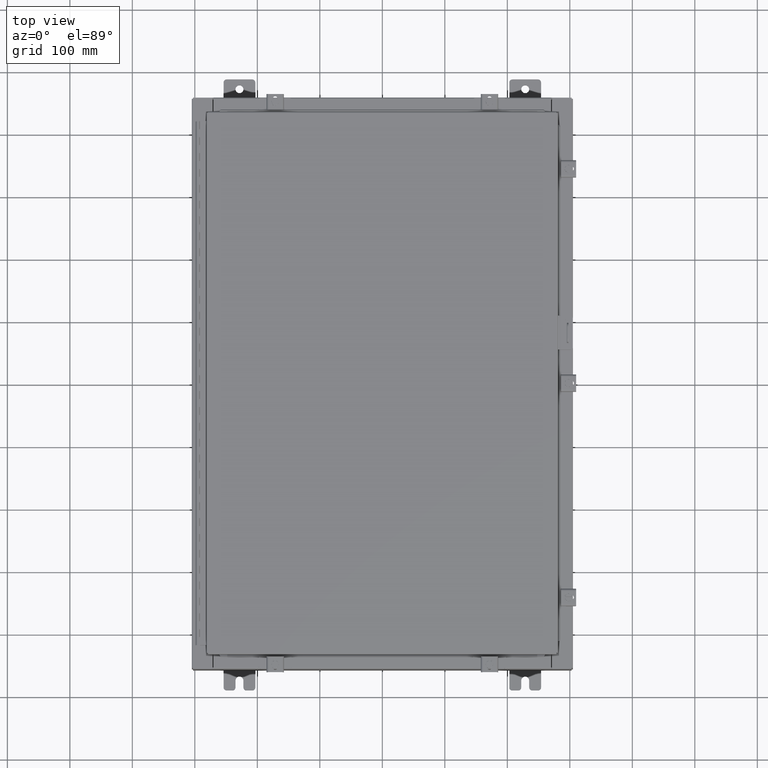
[diagram: clean part render]
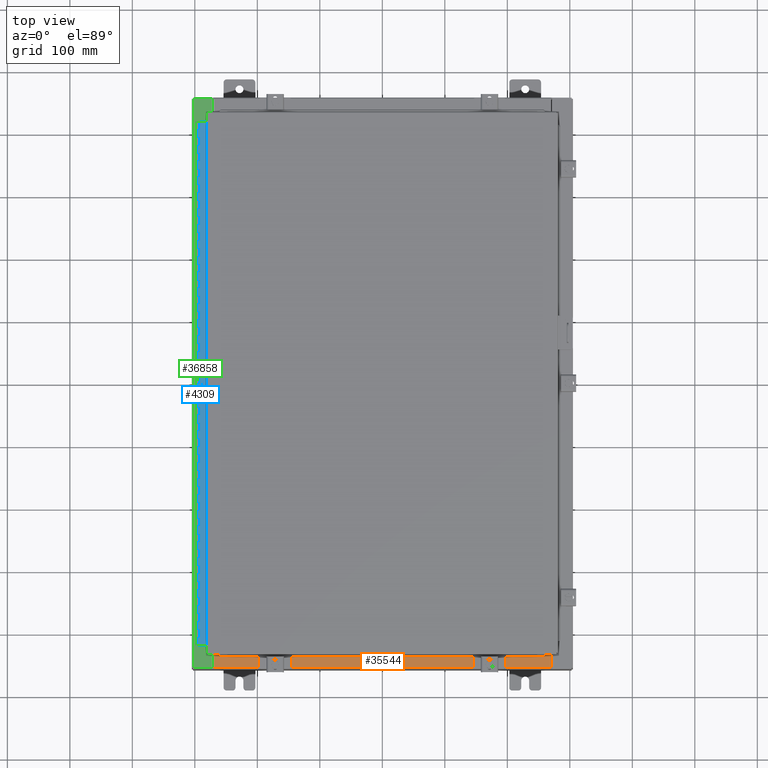
[diagram: same view with three faces highlighted in distinct colors, each labeled with its STEP entity id]
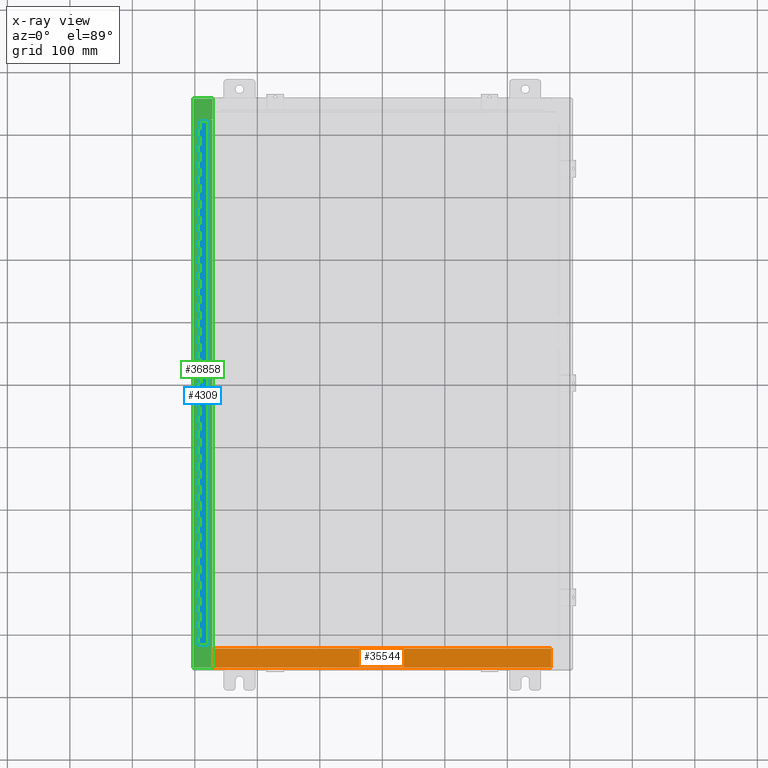
[diagram: x-ray of the same camera — body ghosted, the three highlighted faces saturated]
A machine part, top view with three faces highlighted in distinct colors.
The next image is the same camera in x-ray (body ghosted, the three faces saturated) — at least one of them is partly hidden behind the body in this view.
Their STEP definitions:

[orange] entity #35544 — the highlighted planar face has unit normal (-0, -0, 1).
#186 = PLANE ( 'NONE',  #33653 ) ;
#2795 = ORIENTED_EDGE ( 'NONE', *, *, #13518, .F. ) ;
#3525 = CARTESIAN_POINT ( 'NONE',  ( 0.0000000000000000000, 1.069354855923099900E-014, 3.000000000000000900 ) ) ;
#5416 = ORIENTED_EDGE ( 'NONE', *, *, #30364, .T. ) ;
#6640 = LINE ( 'NONE', #16203, #36039 ) ;
#6868 = DIRECTION ( 'NONE',  ( 0.0000000000000000000, 3.566381192773190000E-015, 1.000000000000000000 ) ) ;
#8314 = VERTEX_POINT ( 'NONE', #28037 ) ;
#8900 = CARTESIAN_POINT ( 'NONE',  ( -10.63720000000000200, -0.08770000000000000000, 3.000000000000000900 ) ) ;
#8967 = EDGE_LOOP ( 'NONE', ( #2795, #31030, #18495, #5416 ) ) ;
#9830 = VECTOR ( 'NONE', #19740, 39.37007874015748100 ) ;
#9947 = CARTESIAN_POINT ( 'NONE',  ( -2.252313287748515100E-018, -0.08770000000000000000, 3.000000000000001300 ) ) ;
#10999 = DIRECTION ( 'NONE',  ( -1.000000000000000000, 2.568202152506545800E-017, -9.159187855938968600E-032 ) ) ;
#13518 = EDGE_CURVE ( 'NONE', #8314, #15774, #23373, .T. ) ;
#14038 = EDGE_CURVE ( 'NONE', #31631, #16044, #6640, .T. ) ;
#15774 = VERTEX_POINT ( 'NONE', #8900 ) ;
#16044 = VERTEX_POINT ( 'NONE', #38345 ) ;
#16203 = CARTESIAN_POINT ( 'NONE',  ( 10.63720000000000200, -1.300299999999999800, 3.000000000000005300 ) ) ;
#18495 = ORIENTED_EDGE ( 'NONE', *, *, #14038, .F. ) ;
#18559 = LINE ( 'NONE', #9947, #19591 ) ;
#19591 = VECTOR ( 'NONE', #10999, 39.37007874015748100 ) ;
#19740 = DIRECTION ( 'NONE',  ( -0.0000000000000000000, 1.000000000000000000, -3.566381192773190000E-015 ) ) ;
#23091 = DIRECTION ( 'NONE',  ( -0.0000000000000000000, -1.000000000000000000, 3.566381192773190000E-015 ) ) ;
#23373 = LINE ( 'NONE', #27111, #9830 ) ;
#26059 = FACE_OUTER_BOUND ( 'NONE', #8967, .T. ) ;
#27111 = CARTESIAN_POINT ( 'NONE',  ( -10.63720000000000200, -0.07469999999999973900, 3.000000000000000900 ) ) ;
#28037 = CARTESIAN_POINT ( 'NONE',  ( -10.63720000000000200, -1.287299999999999200, 3.000000000000005300 ) ) ;
#29632 = LINE ( 'NONE', #35481, #37421 ) ;
#29849 = DIRECTION ( 'NONE',  ( 0.0000000000000000000, -1.000000000000000000, 3.566381192773190000E-015 ) ) ;
#30364 = EDGE_CURVE ( 'NONE', #31631, #15774, #18559, .T. ) ;
#31030 = ORIENTED_EDGE ( 'NONE', *, *, #35701, .F. ) ;
#31631 = VERTEX_POINT ( 'NONE', #41309 ) ;
#33653 = AXIS2_PLACEMENT_3D ( 'NONE', #3525, #6868, #29849 ) ;
#35481 = CARTESIAN_POINT ( 'NONE',  ( 10.63720000000000400, -1.287299999999999900, 3.000000000000005300 ) ) ;
#35544 = ADVANCED_FACE ( 'NONE', ( #26059 ), #186, .T. ) ;
#35701 = EDGE_CURVE ( 'NONE', #16044, #8314, #29632, .T. ) ;
#36039 = VECTOR ( 'NONE', #23091, 39.37007874015748100 ) ;
#37421 = VECTOR ( 'NONE', #38953, 39.37007874015748100 ) ;
#38345 = CARTESIAN_POINT ( 'NONE',  ( 10.63720000000000200, -1.287299999999999900, 3.000000000000005300 ) ) ;
#38953 = DIRECTION ( 'NONE',  ( -1.000000000000000000, 0.0000000000000000000, 0.0000000000000000000 ) ) ;
#41309 = CARTESIAN_POINT ( 'NONE',  ( 10.63720000000000400, -0.08769999999999965300, 3.000000000000000900 ) ) ;

[blue] entity #4309 — the highlighted planar face has unit normal (-0, -0, 1).
#59 = EDGE_CURVE ( 'NONE', #28326, #40629, #4929, .T. ) ;
#96 = VECTOR ( 'NONE', #2273, 39.37007874015748100 ) ;
#153 = DIRECTION ( 'NONE',  ( 3.389037039080723100E-015, 1.000000000000000000, -0.0000000000000000000 ) ) ;
#235 = LINE ( 'NONE', #15598, #34189 ) ;
#272 = VERTEX_POINT ( 'NONE', #10551 ) ;
#313 = EDGE_CURVE ( 'NONE', #27117, #17642, #31967, .T. ) ;
#358 = DIRECTION ( 'NONE',  ( -3.389037039080723100E-015, -1.000000000000000000, 0.0000000000000000000 ) ) ;
#409 = DIRECTION ( 'NONE',  ( 0.0000000000000000000, 0.0000000000000000000, 1.000000000000000000 ) ) ;
#453 = CARTESIAN_POINT ( 'NONE',  ( -0.6869999999999982800, 0.5504999999999997700, -27.50000000000000000 ) ) ;
#497 = VERTEX_POINT ( 'NONE', #35223 ) ;
#510 = EDGE_CURVE ( 'NONE', #36993, #10263, #38816, .T. ) ;
#531 = DIRECTION ( 'NONE',  ( 0.0000000000000000000, -0.0000000000000000000, -1.000000000000000000 ) ) ;
#625 = CARTESIAN_POINT ( 'NONE',  ( -0.6869999999999982800, 0.5504999999999997700, -29.50000000000000000 ) ) ;
#641 = VERTEX_POINT ( 'NONE', #11438 ) ;
#772 = FACE_OUTER_BOUND ( 'NONE', #23288, .T. ) ;
#808 = ORIENTED_EDGE ( 'NONE', *, *, #11158, .F. ) ;
#916 = DIRECTION ( 'NONE',  ( 0.0000000000000000000, -0.0000000000000000000, -1.000000000000000000 ) ) ;
#958 = CARTESIAN_POINT ( 'NONE',  ( -0.6869999999999973900, 0.8004999999999995500, -9.000000000000000000 ) ) ;
#1005 = CARTESIAN_POINT ( 'NONE',  ( -0.6869999999999982800, 0.5504999999999997700, -1.000000000000000000 ) ) ;
#1046 = DIRECTION ( 'NONE',  ( 0.0000000000000000000, 0.0000000000000000000, 1.000000000000000000 ) ) ;
#1098 = ORIENTED_EDGE ( 'NONE', *, *, #18289, .T. ) ;
#1107 = VECTOR ( 'NONE', #42560, 39.37007874015748100 ) ;
#1254 = VECTOR ( 'NONE', #7649, 39.37007874015748100 ) ;
#1272 = EDGE_CURVE ( 'NONE', #33145, #15823, #32345, .T. ) ;
#1291 = CARTESIAN_POINT ( 'NONE',  ( -0.6869999999999982800, 0.5504999999999997700, -14.49999999999999800 ) ) ;
#1318 = EDGE_CURVE ( 'NONE', #11589, #8809, #37900, .T. ) ;
#1366 = EDGE_CURVE ( 'NONE', #2025, #31522, #30394, .T. ) ;
#1376 = LINE ( 'NONE', #28663, #8129 ) ;
#1384 = VERTEX_POINT ( 'NONE', #28065 ) ;
#1401 = DIRECTION ( 'NONE',  ( 0.0000000000000000000, 0.0000000000000000000, 1.000000000000000000 ) ) ;
#1447 = DIRECTION ( 'NONE',  ( 0.0000000000000000000, 0.0000000000000000000, 1.000000000000000000 ) ) ;
#1473 = ORIENTED_EDGE ( 'NONE', *, *, #41414, .F. ) ;
#1474 = VECTOR ( 'NONE', #19105, 39.37007874015748100 ) ;
#1520 = EDGE_CURVE ( 'NONE', #35212, #9622, #25060, .T. ) ;
#1636 = VERTEX_POINT ( 'NONE', #33098 ) ;
#1743 = VECTOR ( 'NONE', #11194, 39.37007874015748100 ) ;
#1753 = CARTESIAN_POINT ( 'NONE',  ( -0.6869999999999978300, 0.6754999999999996600, -31.50000000000000400 ) ) ;
#1759 = CARTESIAN_POINT ( 'NONE',  ( -0.6869999999999982800, 0.5504999999999997700, -28.99999999999999600 ) ) ;
#1812 = VECTOR ( 'NONE', #29355, 39.37007874015748100 ) ;
#1866 = CARTESIAN_POINT ( 'NONE',  ( -0.6869999999999982800, 0.5504999999999997700, -9.500000000000000000 ) ) ;
#1909 = ORIENTED_EDGE ( 'NONE', *, *, #29538, .F. ) ;
#1910 = LINE ( 'NONE', #21333, #36996 ) ;
#1935 = CARTESIAN_POINT ( 'NONE',  ( -0.6869999999999982800, 0.5504999999999997700, -12.49999999999999800 ) ) ;
#1949 = VECTOR ( 'NONE', #11755, 39.37007874015748100 ) ;
#2008 = ORIENTED_EDGE ( 'NONE', *, *, #32705, .F. ) ;
#2025 = VERTEX_POINT ( 'NONE', #3857 ) ;
#2202 = DIRECTION ( 'NONE',  ( 3.389037039080723100E-015, 1.000000000000000000, -0.0000000000000000000 ) ) ;
#2247 = ORIENTED_EDGE ( 'NONE', *, *, #27145, .T. ) ;
#2273 = DIRECTION ( 'NONE',  ( 0.0000000000000000000, -0.0000000000000000000, -1.000000000000000000 ) ) ;
#2451 = LINE ( 'NONE', #16935, #21025 ) ;
#2468 = LINE ( 'NONE', #41185, #27713 ) ;
#2476 = VERTEX_POINT ( 'NONE', #17955 ) ;
#2478 = DIRECTION ( 'NONE',  ( 3.369016658928398200E-015, 1.000000000000000000, 0.0000000000000000000 ) ) ;
#2541 = LINE ( 'NONE', #7871, #19071 ) ;
#2619 = ORIENTED_EDGE ( 'NONE', *, *, #39456, .T. ) ;
#2635 = ORIENTED_EDGE ( 'NONE', *, *, #31130, .F. ) ;
#2688 = VERTEX_POINT ( 'NONE', #7257 ) ;
#2703 = LINE ( 'NONE', #7222, #3734 ) ;
#2716 = CARTESIAN_POINT ( 'NONE',  ( -0.6869999999999973900, 0.8004999999999995500, -29.99999999999999600 ) ) ;
#2726 = CARTESIAN_POINT ( 'NONE',  ( -0.6869999999999978300, 0.6754999999999996600, -7.000000000000000000 ) ) ;
#2761 = DIRECTION ( 'NONE',  ( 0.0000000000000000000, -0.0000000000000000000, -1.000000000000000000 ) ) ;
#2821 = DIRECTION ( 'NONE',  ( 0.0000000000000000000, 0.0000000000000000000, 1.000000000000000000 ) ) ;
#2920 = VERTEX_POINT ( 'NONE', #29518 ) ;
#2927 = VERTEX_POINT ( 'NONE', #1759 ) ;
#2951 = VECTOR ( 'NONE', #8879, 39.37007874015748100 ) ;
#2976 = ORIENTED_EDGE ( 'NONE', *, *, #11272, .T. ) ;
#2994 = ORIENTED_EDGE ( 'NONE', *, *, #6743, .F. ) ;
#3003 = VECTOR ( 'NONE', #28551, 39.37007874015748100 ) ;
#3046 = EDGE_CURVE ( 'NONE', #2920, #5892, #22619, .T. ) ;
#3087 = LINE ( 'NONE', #40258, #14718 ) ;
#3128 = EDGE_CURVE ( 'NONE', #3190, #10263, #8221, .T. ) ;
#3143 = ORIENTED_EDGE ( 'NONE', *, *, #21238, .F. ) ;
#3190 = VERTEX_POINT ( 'NONE', #25601 ) ;
#3195 = EDGE_CURVE ( 'NONE', #23484, #4356, #5260, .T. ) ;
#3236 = EDGE_CURVE ( 'NONE', #31309, #15745, #6629, .T. ) ;
#3241 = VERTEX_POINT ( 'NONE', #37674 ) ;
#3249 = VERTEX_POINT ( 'NONE', #27987 ) ;
#3285 = LINE ( 'NONE', #17749, #5221 ) ;
#3504 = LINE ( 'NONE', #19930, #29747 ) ;
#3614 = VECTOR ( 'NONE', #19363, 39.37007874015748100 ) ;
#3655 = CARTESIAN_POINT ( 'NONE',  ( -0.6869999999999978300, 0.6754999999999996600, -0.5000000000000000000 ) ) ;
#3662 = CARTESIAN_POINT ( 'NONE',  ( -0.6869999999999982800, 0.5504999999999997700, -22.00000000000000000 ) ) ;
#3673 = ORIENTED_EDGE ( 'NONE', *, *, #10412, .F. ) ;
#3691 = VERTEX_POINT ( 'NONE', #14016 ) ;
#3694 = ORIENTED_EDGE ( 'NONE', *, *, #31715, .F. ) ;
#3712 = EDGE_CURVE ( 'NONE', #33856, #1384, #37039, .T. ) ;
#3734 = VECTOR ( 'NONE', #7581, 39.37007874015748100 ) ;
#3809 = LINE ( 'NONE', #12694, #41654 ) ;
#3815 = EDGE_CURVE ( 'NONE', #24256, #28868, #41649, .T. ) ;
#3857 = CARTESIAN_POINT ( 'NONE',  ( -0.6869999999999978300, 0.6754999999999996600, -27.50000000000000000 ) ) ;
#3920 = DIRECTION ( 'NONE',  ( -3.389037039080723100E-015, -1.000000000000000000, 0.0000000000000000000 ) ) ;
#3928 = VECTOR ( 'NONE', #9803, 39.37007874015748100 ) ;
#3979 = ORIENTED_EDGE ( 'NONE', *, *, #26120, .F. ) ;
#4029 = CARTESIAN_POINT ( 'NONE',  ( -0.6869999999999973900, 0.8004999999999995500, -28.50000000000000000 ) ) ;
#4091 = VERTEX_POINT ( 'NONE', #31688 ) ;
#4112 = ORIENTED_EDGE ( 'NONE', *, *, #1272, .F. ) ;
#4144 = VERTEX_POINT ( 'NONE', #12111 ) ;
#4186 = ORIENTED_EDGE ( 'NONE', *, *, #59, .T. ) ;
#4288 = DIRECTION ( 'NONE',  ( 0.0000000000000000000, 0.0000000000000000000, 1.000000000000000000 ) ) ;
#4309 = ADVANCED_FACE ( 'NONE', ( #772 ), #18237, .T. ) ;
#4356 = VERTEX_POINT ( 'NONE', #18193 ) ;
#4490 = VERTEX_POINT ( 'NONE', #14269 ) ;
#4517 = DIRECTION ( 'NONE',  ( 3.389037039080723100E-015, 1.000000000000000000, -0.0000000000000000000 ) ) ;
#4587 = VECTOR ( 'NONE', #17733, 39.37007874015748100 ) ;
#4596 = VERTEX_POINT ( 'NONE', #36205 ) ;
#4627 = DIRECTION ( 'NONE',  ( -3.389037039080723100E-015, -1.000000000000000000, 0.0000000000000000000 ) ) ;
#4646 = ORIENTED_EDGE ( 'NONE', *, *, #30566, .F. ) ;
#4655 = VECTOR ( 'NONE', #4627, 39.37007874015748100 ) ;
#4903 = EDGE_CURVE ( 'NONE', #9418, #14131, #33829, .T. ) ;
#4916 = DIRECTION ( 'NONE',  ( 3.389037039080723100E-015, 1.000000000000000000, -0.0000000000000000000 ) ) ;
#4918 = CARTESIAN_POINT ( 'NONE',  ( -0.6869999999999978300, 0.6754999999999996600, -19.50000000000000000 ) ) ;
#4929 = LINE ( 'NONE', #16125, #20682 ) ;
#4937 = CARTESIAN_POINT ( 'NONE',  ( -0.6869999999999973900, 0.8004999999999995500, -17.99999999999999600 ) ) ;
#4963 = CARTESIAN_POINT ( 'NONE',  ( -0.6869999999999982800, 0.5504999999999997700, -27.50000000000000000 ) ) ;
#4989 = CARTESIAN_POINT ( 'NONE',  ( -0.6869999999999978300, 0.6754999999999996600, -1.499999999999999800 ) ) ;
#4998 = ORIENTED_EDGE ( 'NONE', *, *, #5482, .T. ) ;
#5028 = CARTESIAN_POINT ( 'NONE',  ( -0.6869999999999982800, 0.5504999999999997700, -11.50000000000000000 ) ) ;
#5029 = LINE ( 'NONE', #5527, #2951 ) ;
#5081 = EDGE_CURVE ( 'NONE', #17138, #4356, #33649, .T. ) ;
#5085 = ORIENTED_EDGE ( 'NONE', *, *, #42278, .F. ) ;
#5123 = CARTESIAN_POINT ( 'NONE',  ( -0.6869999999999982800, 0.5504999999999997700, -2.000000000000000000 ) ) ;
#5124 = EDGE_CURVE ( 'NONE', #13932, #29599, #28755, .T. ) ;
#5153 = CARTESIAN_POINT ( 'NONE',  ( -0.6869999999999982800, 0.5504999999999997700, -31.50000000000000400 ) ) ;
#5177 = CARTESIAN_POINT ( 'NONE',  ( -0.6869999999999973900, 0.8004999999999995500, -11.50000000000000000 ) ) ;
#5206 = CARTESIAN_POINT ( 'NONE',  ( -0.6869999999999973900, 0.8004999999999995500, -21.00000000000000000 ) ) ;
#5207 = ORIENTED_EDGE ( 'NONE', *, *, #27824, .T. ) ;
#5221 = VECTOR ( 'NONE', #17710, 39.37007874015748100 ) ;
#5260 = LINE ( 'NONE', #13693, #10246 ) ;
#5270 = CARTESIAN_POINT ( 'NONE',  ( -0.6870000000000022800, -0.6245000000000003900, -33.00000000000000000 ) ) ;
#5282 = CARTESIAN_POINT ( 'NONE',  ( -0.6869999999999973900, 0.8004999999999995500, -29.50000000000000000 ) ) ;
#5318 = DIRECTION ( 'NONE',  ( -3.389037039080723100E-015, -1.000000000000000000, 0.0000000000000000000 ) ) ;
#5368 = EDGE_CURVE ( 'NONE', #24306, #26318, #37562, .T. ) ;
#5395 = DIRECTION ( 'NONE',  ( 3.389037039080723100E-015, 1.000000000000000000, -0.0000000000000000000 ) ) ;
#5464 = CARTESIAN_POINT ( 'NONE',  ( -0.6869999999999978300, 0.6754999999999996600, -33.00000000000000000 ) ) ;
#5472 = LINE ( 'NONE', #15969, #20927 ) ;
#5482 = EDGE_CURVE ( 'NONE', #26801, #21227, #16922, .T. ) ;
#5527 = CARTESIAN_POINT ( 'NONE',  ( -0.6869999999999978300, 0.6754999999999996600, -33.00000000000000000 ) ) ;
#5558 = EDGE_CURVE ( 'NONE', #38732, #27819, #16226, .T. ) ;
#5590 = VERTEX_POINT ( 'NONE', #18170 ) ;
#5667 = LINE ( 'NONE', #17695, #4587 ) ;
#5715 = CARTESIAN_POINT ( 'NONE',  ( -0.6869999999999982800, 0.5504999999999997700, -29.50000000000000000 ) ) ;
#5754 = CARTESIAN_POINT ( 'NONE',  ( -0.6869999999999978300, 0.6754999999999996600, -32.50000000000000000 ) ) ;
#5776 = LINE ( 'NONE', #5282, #22259 ) ;
#5804 = VECTOR ( 'NONE', #916, 39.37007874015748100 ) ;
#5892 = VERTEX_POINT ( 'NONE', #34396 ) ;
#5916 = DIRECTION ( 'NONE',  ( 3.389037039080723100E-015, 1.000000000000000000, -0.0000000000000000000 ) ) ;
#5924 = LINE ( 'NONE', #36235, #1743 ) ;
#5949 = ORIENTED_EDGE ( 'NONE', *, *, #6304, .F. ) ;
#5952 = ORIENTED_EDGE ( 'NONE', *, *, #21690, .T. ) ;
#5980 = DIRECTION ( 'NONE',  ( -3.389037039080723100E-015, -1.000000000000000000, 0.0000000000000000000 ) ) ;
#5985 = CARTESIAN_POINT ( 'NONE',  ( -0.6869999999999982800, 0.5504999999999997700, -1.499999999999999800 ) ) ;
#6029 = EDGE_CURVE ( 'NONE', #27117, #27858, #23366, .T. ) ;
#6072 = VECTOR ( 'NONE', #7526, 39.37007874015748100 ) ;
#6092 = CARTESIAN_POINT ( 'NONE',  ( -0.6869999999999982800, 0.5504999999999997700, -26.50000000000000400 ) ) ;
#6109 = DIRECTION ( 'NONE',  ( 3.389037039080723100E-015, 1.000000000000000000, -0.0000000000000000000 ) ) ;
#6117 = DIRECTION ( 'NONE',  ( -3.389037039080723100E-015, -1.000000000000000000, 0.0000000000000000000 ) ) ;
#6188 = DIRECTION ( 'NONE',  ( 3.389037039080723100E-015, 1.000000000000000000, -0.0000000000000000000 ) ) ;
#6221 = CARTESIAN_POINT ( 'NONE',  ( -0.6869999999999982800, 0.5504999999999997700, -5.500000000000000000 ) ) ;
#6272 = VERTEX_POINT ( 'NONE', #21869 ) ;
#6304 = EDGE_CURVE ( 'NONE', #28326, #21224, #36832, .T. ) ;
#6326 = ORIENTED_EDGE ( 'NONE', *, *, #22429, .F. ) ;
#6345 = CARTESIAN_POINT ( 'NONE',  ( -0.6869999999999978300, 0.6754999999999996600, -33.00000000000000000 ) ) ;
#6351 = VERTEX_POINT ( 'NONE', #1005 ) ;
#6363 = CARTESIAN_POINT ( 'NONE',  ( -0.6869999999999982800, 0.5504999999999997700, -15.50000000000000000 ) ) ;
#6460 = EDGE_CURVE ( 'NONE', #24143, #7452, #40963, .T. ) ;
#6481 = VECTOR ( 'NONE', #21888, 39.37007874015748100 ) ;
#6511 = VERTEX_POINT ( 'NONE', #39921 ) ;
#6553 = VECTOR ( 'NONE', #11118, 39.37007874015748100 ) ;
#6583 = DIRECTION ( 'NONE',  ( 3.389037039080723100E-015, 1.000000000000000000, -0.0000000000000000000 ) ) ;
#6585 = ORIENTED_EDGE ( 'NONE', *, *, #24472, .F. ) ;
#6621 = ORIENTED_EDGE ( 'NONE', *, *, #15075, .T. ) ;
#6629 = LINE ( 'NONE', #8047, #12483 ) ;
#6680 = EDGE_CURVE ( 'NONE', #6351, #21227, #28631, .T. ) ;
#6717 = ORIENTED_EDGE ( 'NONE', *, *, #1520, .F. ) ;
#6743 = EDGE_CURVE ( 'NONE', #26801, #38170, #22910, .T. ) ;
#6745 = ORIENTED_EDGE ( 'NONE', *, *, #37124, .F. ) ;
#6857 = ORIENTED_EDGE ( 'NONE', *, *, #39128, .F. ) ;
#6909 = VECTOR ( 'NONE', #36931, 39.37007874015748100 ) ;
#6914 = DIRECTION ( 'NONE',  ( -3.389037039080723100E-015, -1.000000000000000000, 0.0000000000000000000 ) ) ;
#7005 = CARTESIAN_POINT ( 'NONE',  ( -0.6869999999999982800, 0.5504999999999997700, -2.999999999999999600 ) ) ;
#7029 = ORIENTED_EDGE ( 'NONE', *, *, #5558, .F. ) ;
#7065 = LINE ( 'NONE', #42363, #29450 ) ;
#7073 = VECTOR ( 'NONE', #30336, 39.37007874015748100 ) ;
#7108 = ORIENTED_EDGE ( 'NONE', *, *, #313, .F. ) ;
#7213 = EDGE_CURVE ( 'NONE', #3691, #2476, #11263, .T. ) ;
#7222 = CARTESIAN_POINT ( 'NONE',  ( -0.6869999999999973900, 0.8004999999999995500, -31.00000000000000000 ) ) ;
#7234 = VECTOR ( 'NONE', #22506, 39.37007874015748100 ) ;
#7257 = CARTESIAN_POINT ( 'NONE',  ( -0.6869999999999982800, 0.5504999999999997700, -7.000000000000000000 ) ) ;
#7296 = CARTESIAN_POINT ( 'NONE',  ( -0.6869999999999978300, 0.6754999999999996600, -18.50000000000000000 ) ) ;
#7309 = VERTEX_POINT ( 'NONE', #5754 ) ;
#7414 = DIRECTION ( 'NONE',  ( 0.0000000000000000000, 0.0000000000000000000, 1.000000000000000000 ) ) ;
#7452 = VERTEX_POINT ( 'NONE', #35177 ) ;
#7464 = ORIENTED_EDGE ( 'NONE', *, *, #12201, .T. ) ;
#7476 = LINE ( 'NONE', #24876, #22290 ) ;
#7485 = ORIENTED_EDGE ( 'NONE', *, *, #1318, .T. ) ;
#7514 = CARTESIAN_POINT ( 'NONE',  ( -0.6869999999999978300, 0.6754999999999996600, -7.499999999999999100 ) ) ;
#7515 = LINE ( 'NONE', #31005, #24999 ) ;
#7526 = DIRECTION ( 'NONE',  ( -3.389037039080723100E-015, -1.000000000000000000, 0.0000000000000000000 ) ) ;
#7535 = ORIENTED_EDGE ( 'NONE', *, *, #36223, .F. ) ;
#7562 = LINE ( 'NONE', #38866, #25047 ) ;
#7570 = DIRECTION ( 'NONE',  ( -3.389037039080723100E-015, -1.000000000000000000, 0.0000000000000000000 ) ) ;
#7581 = DIRECTION ( 'NONE',  ( 3.389037039080723100E-015, 1.000000000000000000, -0.0000000000000000000 ) ) ;
#7585 = EDGE_CURVE ( 'NONE', #38546, #28868, #5472, .T. ) ;
#7618 = LINE ( 'NONE', #34355, #15402 ) ;
#7649 = DIRECTION ( 'NONE',  ( 0.0000000000000000000, -0.0000000000000000000, -1.000000000000000000 ) ) ;
#7662 = ORIENTED_EDGE ( 'NONE', *, *, #42584, .F. ) ;
#7671 = CARTESIAN_POINT ( 'NONE',  ( -0.6869999999999978300, 0.6754999999999996600, -26.00000000000000000 ) ) ;
#7689 = CARTESIAN_POINT ( 'NONE',  ( -0.6869999999999978300, 0.6754999999999996600, -2.999999999999999600 ) ) ;
#7779 = LINE ( 'NONE', #22797, #15543 ) ;
#7794 = VECTOR ( 'NONE', #27911, 39.37007874015748100 ) ;
#7847 = CARTESIAN_POINT ( 'NONE',  ( -0.6869999999999982800, 0.5504999999999997700, -11.99999999999999800 ) ) ;
#7871 = CARTESIAN_POINT ( 'NONE',  ( -0.6869999999999973900, 0.8004999999999995500, -2.000000000000000000 ) ) ;
#7982 = CARTESIAN_POINT ( 'NONE',  ( -0.6869999999999978300, 0.6754999999999996600, -33.00000000000000000 ) ) ;
#7989 = CARTESIAN_POINT ( 'NONE',  ( -0.6869999999999973900, 0.8004999999999995500, -13.50000000000000000 ) ) ;
#8027 = EDGE_CURVE ( 'NONE', #29697, #8815, #11627, .T. ) ;
#8047 = CARTESIAN_POINT ( 'NONE',  ( -0.6869999999999978300, 0.6754999999999996600, -33.00000000000000000 ) ) ;
#8056 = LINE ( 'NONE', #22759, #29003 ) ;
#8064 = VECTOR ( 'NONE', #358, 39.37007874015748100 ) ;
#8129 = VECTOR ( 'NONE', #38646, 39.37007874015748100 ) ;
#8221 = LINE ( 'NONE', #8846, #15721 ) ;
#8378 = CARTESIAN_POINT ( 'NONE',  ( -0.6869999999999973900, 0.8004999999999995500, -23.99999999999999600 ) ) ;
#8397 = CARTESIAN_POINT ( 'NONE',  ( -0.6869999999999978300, 0.6754999999999996600, -2.000000000000000000 ) ) ;
#8510 = EDGE_CURVE ( 'NONE', #23484, #21680, #35755, .T. ) ;
#8605 = EDGE_CURVE ( 'NONE', #34753, #18056, #25212, .T. ) ;
#8608 = ORIENTED_EDGE ( 'NONE', *, *, #6680, .F. ) ;
#8639 = ORIENTED_EDGE ( 'NONE', *, *, #38597, .F. ) ;
#8696 = VECTOR ( 'NONE', #41956, 39.37007874015748100 ) ;
#8720 = EDGE_CURVE ( 'NONE', #37108, #23067, #27313, .T. ) ;
#8743 = VECTOR ( 'NONE', #11597, 39.37007874015748100 ) ;
#8763 = VERTEX_POINT ( 'NONE', #29250 ) ;
#8809 = VERTEX_POINT ( 'NONE', #37818 ) ;
#8815 = VERTEX_POINT ( 'NONE', #34339 ) ;
#8831 = CARTESIAN_POINT ( 'NONE',  ( -0.6869999999999982800, 0.5504999999999997700, -10.50000000000000000 ) ) ;
#8846 = CARTESIAN_POINT ( 'NONE',  ( -0.6869999999999978300, 0.6754999999999996600, -33.00000000000000000 ) ) ;
#8874 = CARTESIAN_POINT ( 'NONE',  ( -0.6869999999999982800, 0.5504999999999997700, -10.50000000000000000 ) ) ;
#8879 = DIRECTION ( 'NONE',  ( 0.0000000000000000000, 0.0000000000000000000, 1.000000000000000000 ) ) ;
#8957 = CARTESIAN_POINT ( 'NONE',  ( -0.6869999999999982800, 0.5504999999999997700, -22.50000000000000000 ) ) ;
#9037 = VECTOR ( 'NONE', #1046, 39.37007874015748100 ) ;
#9113 = CARTESIAN_POINT ( 'NONE',  ( -0.6869999999999978300, 0.6754999999999996600, -12.99999999999999800 ) ) ;
#9134 = DIRECTION ( 'NONE',  ( -3.389037039080723100E-015, -1.000000000000000000, 0.0000000000000000000 ) ) ;
#9221 = ORIENTED_EDGE ( 'NONE', *, *, #23533, .F. ) ;
#9298 = CARTESIAN_POINT ( 'NONE',  ( -0.6869999999999978300, 0.6754999999999996600, -8.000000000000000000 ) ) ;
#9360 = EDGE_CURVE ( 'NONE', #32483, #30738, #39845, .T. ) ;
#9377 = ORIENTED_EDGE ( 'NONE', *, *, #3236, .T. ) ;
#9418 = VERTEX_POINT ( 'NONE', #19874 ) ;
#9464 = VERTEX_POINT ( 'NONE', #21465 ) ;
#9576 = ORIENTED_EDGE ( 'NONE', *, *, #32617, .T. ) ;
#9595 = ORIENTED_EDGE ( 'NONE', *, *, #7213, .T. ) ;
#9622 = VERTEX_POINT ( 'NONE', #9972 ) ;
#9658 = ORIENTED_EDGE ( 'NONE', *, *, #5124, .F. ) ;
#9708 = EDGE_CURVE ( 'NONE', #31554, #4144, #20810, .T. ) ;
#9779 = DIRECTION ( 'NONE',  ( 0.0000000000000000000, 0.0000000000000000000, 1.000000000000000000 ) ) ;
#9803 = DIRECTION ( 'NONE',  ( -3.389037039080723100E-015, -1.000000000000000000, 0.0000000000000000000 ) ) ;
#9835 = EDGE_CURVE ( 'NONE', #24232, #4490, #16142, .T. ) ;
#9876 = CARTESIAN_POINT ( 'NONE',  ( -0.6869999999999978300, 0.6754999999999996600, -11.99999999999999800 ) ) ;
#9915 = CARTESIAN_POINT ( 'NONE',  ( -0.6869999999999982800, 0.5504999999999997700, -12.49999999999999800 ) ) ;
#9932 = CARTESIAN_POINT ( 'NONE',  ( -0.6869999999999973900, 0.8004999999999995500, -10.50000000000000000 ) ) ;
#9972 = CARTESIAN_POINT ( 'NONE',  ( -0.6869999999999982800, 0.5504999999999997700, -32.00000000000000000 ) ) ;
#10103 = CARTESIAN_POINT ( 'NONE',  ( -0.6869999999999973900, 0.8004999999999995500, -3.500000000000000000 ) ) ;
#10128 = LINE ( 'NONE', #1291, #30525 ) ;
#10134 = VECTOR ( 'NONE', #15373, 39.37007874015748100 ) ;
#10144 = ORIENTED_EDGE ( 'NONE', *, *, #33248, .T. ) ;
#10163 = EDGE_CURVE ( 'NONE', #24283, #26095, #3809, .T. ) ;
#10246 = VECTOR ( 'NONE', #39766, 39.37007874015748100 ) ;
#10263 = VERTEX_POINT ( 'NONE', #9113 ) ;
#10361 = VERTEX_POINT ( 'NONE', #7514 ) ;
#10378 = CARTESIAN_POINT ( 'NONE',  ( -0.6869999999999978300, 0.6754999999999996600, -33.00000000000000000 ) ) ;
#10412 = EDGE_CURVE ( 'NONE', #34317, #33852, #25033, .T. ) ;
#10443 = DIRECTION ( 'NONE',  ( -3.389037039080723100E-015, -1.000000000000000000, 0.0000000000000000000 ) ) ;
#10464 = ORIENTED_EDGE ( 'NONE', *, *, #41218, .F. ) ;
#10551 = CARTESIAN_POINT ( 'NONE',  ( -0.6869999999999982800, 0.5504999999999997700, -15.50000000000000000 ) ) ;
#10585 = LINE ( 'NONE', #28541, #1812 ) ;
#10613 = EDGE_CURVE ( 'NONE', #38122, #38732, #26706, .T. ) ;
#10808 = ORIENTED_EDGE ( 'NONE', *, *, #15381, .F. ) ;
#10849 = VECTOR ( 'NONE', #16853, 39.37007874015748100 ) ;
#10854 = DIRECTION ( 'NONE',  ( 0.0000000000000000000, -0.0000000000000000000, -1.000000000000000000 ) ) ;
#10880 = CARTESIAN_POINT ( 'NONE',  ( -0.6869999999999982800, 0.5504999999999997700, -20.50000000000000400 ) ) ;
#10910 = ORIENTED_EDGE ( 'NONE', *, *, #19314, .T. ) ;
#11073 = LINE ( 'NONE', #26747, #26445 ) ;
#11103 = CARTESIAN_POINT ( 'NONE',  ( -0.6869999999999978300, 0.6754999999999996600, -15.50000000000000000 ) ) ;
#11118 = DIRECTION ( 'NONE',  ( 3.389037039080723100E-015, 1.000000000000000000, -0.0000000000000000000 ) ) ;
#11158 = EDGE_CURVE ( 'NONE', #1636, #27799, #33746, .T. ) ;
#11165 = EDGE_CURVE ( 'NONE', #17110, #12954, #16070, .T. ) ;
#11194 = DIRECTION ( 'NONE',  ( 0.0000000000000000000, -0.0000000000000000000, -1.000000000000000000 ) ) ;
#11263 = LINE ( 'NONE', #31599, #9037 ) ;
#11272 = EDGE_CURVE ( 'NONE', #38372, #26095, #32974, .T. ) ;
#11293 = VERTEX_POINT ( 'NONE', #23691 ) ;
#11304 = VECTOR ( 'NONE', #16724, 39.37007874015748100 ) ;
#11338 = EDGE_CURVE ( 'NONE', #15823, #24232, #40608, .T. ) ;
#11366 = CARTESIAN_POINT ( 'NONE',  ( -0.6869999999999982800, 0.5504999999999997700, -6.499999999999999100 ) ) ;
#11391 = VERTEX_POINT ( 'NONE', #31538 ) ;
#11401 = LINE ( 'NONE', #10378, #11912 ) ;
#11408 = EDGE_CURVE ( 'NONE', #19502, #32483, #23645, .T. ) ;
#11435 = CARTESIAN_POINT ( 'NONE',  ( -0.6869999999999978300, 0.6754999999999996600, -9.000000000000000000 ) ) ;
#11438 = CARTESIAN_POINT ( 'NONE',  ( -0.6869999999999982800, 0.5504999999999997700, -17.50000000000000000 ) ) ;
#11458 = VECTOR ( 'NONE', #25483, 39.37007874015748100 ) ;
#11507 = VERTEX_POINT ( 'NONE', #20908 ) ;
#11558 = ORIENTED_EDGE ( 'NONE', *, *, #5081, .F. ) ;
#11587 = VECTOR ( 'NONE', #26736, 39.37007874015748100 ) ;
#11589 = VERTEX_POINT ( 'NONE', #1753 ) ;
#11597 = DIRECTION ( 'NONE',  ( 3.389037039080723100E-015, 1.000000000000000000, -0.0000000000000000000 ) ) ;
#11627 = LINE ( 'NONE', #13220, #12100 ) ;
#11657 = CARTESIAN_POINT ( 'NONE',  ( -0.6869999999999982800, 0.5504999999999997700, -24.50000000000000000 ) ) ;
#11689 = VERTEX_POINT ( 'NONE', #26413 ) ;
#11755 = DIRECTION ( 'NONE',  ( 3.389037039080723100E-015, 1.000000000000000000, -0.0000000000000000000 ) ) ;
#11836 = EDGE_CURVE ( 'NONE', #3249, #27819, #23773, .T. ) ;
#11912 = VECTOR ( 'NONE', #15231, 39.37007874015748100 ) ;
#11984 = CARTESIAN_POINT ( 'NONE',  ( -0.6869999999999982800, 0.5504999999999997700, -17.00000000000000000 ) ) ;
#12100 = VECTOR ( 'NONE', #13346, 39.37007874015748100 ) ;
#12111 = CARTESIAN_POINT ( 'NONE',  ( -0.6869999999999982800, 0.5504999999999997700, -24.99999999999999600 ) ) ;
#12123 = EDGE_CURVE ( 'NONE', #39910, #4596, #18505, .T. ) ;
#12170 = CARTESIAN_POINT ( 'NONE',  ( -0.6869999999999978300, 0.6754999999999996600, -14.00000000000000000 ) ) ;
#12201 = EDGE_CURVE ( 'NONE', #2025, #12930, #35626, .T. ) ;
#12263 = DIRECTION ( 'NONE',  ( 1.000000000000000000, -3.369016658928398200E-015, 0.0000000000000000000 ) ) ;
#12429 = LINE ( 'NONE', #21290, #33413 ) ;
#12464 = EDGE_CURVE ( 'NONE', #34753, #29037, #11401, .T. ) ;
#12483 = VECTOR ( 'NONE', #20023, 39.37007874015748100 ) ;
#12565 = ORIENTED_EDGE ( 'NONE', *, *, #19984, .F. ) ;
#12653 = DIRECTION ( 'NONE',  ( 3.369016658928398200E-015, 1.000000000000000000, 0.0000000000000000000 ) ) ;
#12690 = DIRECTION ( 'NONE',  ( -3.389037039080723100E-015, -1.000000000000000000, 0.0000000000000000000 ) ) ;
#12694 = CARTESIAN_POINT ( 'NONE',  ( -0.6870000000000022800, -0.6245000000000003900, 0.0000000000000000000 ) ) ;
#12869 = ORIENTED_EDGE ( 'NONE', *, *, #40553, .F. ) ;
#12922 = VECTOR ( 'NONE', #18186, 39.37007874015748100 ) ;
#12930 = VERTEX_POINT ( 'NONE', #20752 ) ;
#12938 = LINE ( 'NONE', #15414, #3003 ) ;
#12954 = VERTEX_POINT ( 'NONE', #40426 ) ;
#12983 = VECTOR ( 'NONE', #13153, 39.37007874015748100 ) ;
#13016 = ORIENTED_EDGE ( 'NONE', *, *, #6460, .T. ) ;
#13153 = DIRECTION ( 'NONE',  ( 3.389037039080723100E-015, 1.000000000000000000, -0.0000000000000000000 ) ) ;
#13177 = CARTESIAN_POINT ( 'NONE',  ( -0.6869999999999982800, 0.5504999999999997700, -0.5000000000000000000 ) ) ;
#13214 = CARTESIAN_POINT ( 'NONE',  ( -0.6869999999999982800, 0.5504999999999997700, -16.50000000000000000 ) ) ;
#13216 = EDGE_CURVE ( 'NONE', #24306, #33852, #37502, .T. ) ;
#13220 = CARTESIAN_POINT ( 'NONE',  ( -0.6869999999999973900, 0.8004999999999995500, -22.00000000000000000 ) ) ;
#13307 = VECTOR ( 'NONE', #39146, 39.37007874015748100 ) ;
#13346 = DIRECTION ( 'NONE',  ( 3.389037039080723100E-015, 1.000000000000000000, -0.0000000000000000000 ) ) ;
#13364 = CARTESIAN_POINT ( 'NONE',  ( -0.6869999999999973900, 0.8004999999999995500, -4.500000000000000000 ) ) ;
#13373 = LINE ( 'NONE', #16579, #11304 ) ;
#13482 = VERTEX_POINT ( 'NONE', #7296 ) ;
#13489 = ORIENTED_EDGE ( 'NONE', *, *, #28433, .F. ) ;
#13523 = VERTEX_POINT ( 'NONE', #29613 ) ;
#13537 = EDGE_CURVE ( 'NONE', #36474, #2476, #27000, .T. ) ;
#13571 = CARTESIAN_POINT ( 'NONE',  ( -0.6869999999999973900, 0.8004999999999995500, -9.500000000000000000 ) ) ;
#13630 = CARTESIAN_POINT ( 'NONE',  ( -0.6869999999999978300, 0.6754999999999996600, -10.50000000000000000 ) ) ;
#13656 = CARTESIAN_POINT ( 'NONE',  ( -0.6869999999999978300, 0.6754999999999996600, -33.00000000000000000 ) ) ;
#13693 = CARTESIAN_POINT ( 'NONE',  ( -0.6869999999999978300, 0.6754999999999996600, -33.00000000000000000 ) ) ;
#13698 = VECTOR ( 'NONE', #34540, 39.37007874015748100 ) ;
#13705 = CARTESIAN_POINT ( 'NONE',  ( -0.6869999999999978300, 0.6754999999999996600, -23.99999999999999600 ) ) ;
#13867 = CARTESIAN_POINT ( 'NONE',  ( -0.6869999999999982800, 0.5504999999999997700, -14.00000000000000000 ) ) ;
#13932 = VERTEX_POINT ( 'NONE', #15011 ) ;
#14016 = CARTESIAN_POINT ( 'NONE',  ( -0.6869999999999978300, 0.6754999999999996600, -11.50000000000000000 ) ) ;
#14025 = DIRECTION ( 'NONE',  ( 3.389037039080723100E-015, 1.000000000000000000, -0.0000000000000000000 ) ) ;
#14064 = CARTESIAN_POINT ( 'NONE',  ( -0.6869999999999973900, 0.8004999999999995500, -18.50000000000000000 ) ) ;
#14131 = VERTEX_POINT ( 'NONE', #28378 ) ;
#14262 = ORIENTED_EDGE ( 'NONE', *, *, #11836, .T. ) ;
#14269 = CARTESIAN_POINT ( 'NONE',  ( -0.6869999999999978300, 0.6754999999999996600, -4.000000000000000000 ) ) ;
#14275 = VECTOR ( 'NONE', #33851, 39.37007874015748100 ) ;
#14333 = CARTESIAN_POINT ( 'NONE',  ( -0.6869999999999973900, 0.8004999999999995500, -15.50000000000000000 ) ) ;
#14372 = ORIENTED_EDGE ( 'NONE', *, *, #8027, .F. ) ;
#14410 = VECTOR ( 'NONE', #36275, 39.37007874015748100 ) ;
#14592 = ORIENTED_EDGE ( 'NONE', *, *, #32251, .F. ) ;
#14603 = CARTESIAN_POINT ( 'NONE',  ( -0.6869999999999973900, 0.8004999999999995500, -32.50000000000000000 ) ) ;
#14632 = DIRECTION ( 'NONE',  ( 3.389037039080723100E-015, 1.000000000000000000, -0.0000000000000000000 ) ) ;
#14633 = ORIENTED_EDGE ( 'NONE', *, *, #15571, .F. ) ;
#14634 = CARTESIAN_POINT ( 'NONE',  ( -0.6869999999999978300, 0.6754999999999996600, -22.50000000000000000 ) ) ;
#14669 = EDGE_CURVE ( 'NONE', #24778, #24919, #10128, .T. ) ;
#14678 = VECTOR ( 'NONE', #10854, 39.37007874015748100 ) ;
#14718 = VECTOR ( 'NONE', #42095, 39.37007874015748100 ) ;
#14721 = VECTOR ( 'NONE', #7414, 39.37007874015748100 ) ;
#14862 = CARTESIAN_POINT ( 'NONE',  ( -0.6869999999999978300, 0.6754999999999996600, -33.00000000000000000 ) ) ;
#14895 = LINE ( 'NONE', #14064, #6072 ) ;
#14979 = VERTEX_POINT ( 'NONE', #14634 ) ;
#15011 = CARTESIAN_POINT ( 'NONE',  ( -0.6869999999999982800, 0.5504999999999997700, -17.99999999999999600 ) ) ;
#15075 = EDGE_CURVE ( 'NONE', #25690, #15144, #24763, .T. ) ;
#15131 = DIRECTION ( 'NONE',  ( -3.389037039080723100E-015, -1.000000000000000000, 0.0000000000000000000 ) ) ;
#15144 = VERTEX_POINT ( 'NONE', #8397 ) ;
#15209 = ORIENTED_EDGE ( 'NONE', *, *, #9835, .F. ) ;
#15231 = DIRECTION ( 'NONE',  ( 0.0000000000000000000, 0.0000000000000000000, 1.000000000000000000 ) ) ;
#15291 = LINE ( 'NONE', #38323, #6481 ) ;
#15373 = DIRECTION ( 'NONE',  ( 0.0000000000000000000, -0.0000000000000000000, -1.000000000000000000 ) ) ;
#15381 = EDGE_CURVE ( 'NONE', #18056, #34317, #38434, .T. ) ;
#15402 = VECTOR ( 'NONE', #18058, 39.37007874015748100 ) ;
#15414 = CARTESIAN_POINT ( 'NONE',  ( -0.6869999999999973900, 0.8004999999999995500, -2.999999999999999600 ) ) ;
#15504 = LINE ( 'NONE', #13656, #31849 ) ;
#15510 = VECTOR ( 'NONE', #29469, 39.37007874015748100 ) ;
#15543 = VECTOR ( 'NONE', #42444, 39.37007874015748100 ) ;
#15571 = EDGE_CURVE ( 'NONE', #28133, #19479, #33165, .T. ) ;
#15598 = CARTESIAN_POINT ( 'NONE',  ( -0.6869999999999982800, 0.5504999999999997700, -21.50000000000000400 ) ) ;
#15611 = VECTOR ( 'NONE', #18398, 39.37007874015748100 ) ;
#15614 = VERTEX_POINT ( 'NONE', #41405 ) ;
#15716 = LINE ( 'NONE', #37158, #14678 ) ;
#15721 = VECTOR ( 'NONE', #4288, 39.37007874015748100 ) ;
#15741 = VECTOR ( 'NONE', #34294, 39.37007874015748100 ) ;
#15745 = VERTEX_POINT ( 'NONE', #9298 ) ;
#15816 = VECTOR ( 'NONE', #1401, 39.37007874015748100 ) ;
#15823 = VERTEX_POINT ( 'NONE', #25332 ) ;
#15855 = DIRECTION ( 'NONE',  ( -3.389037039080723100E-015, -1.000000000000000000, 0.0000000000000000000 ) ) ;
#15967 = CARTESIAN_POINT ( 'NONE',  ( -0.6869999999999978300, 0.6754999999999996600, -25.50000000000000400 ) ) ;
#15969 = CARTESIAN_POINT ( 'NONE',  ( -0.6869999999999978300, 0.6754999999999996600, -33.00000000000000000 ) ) ;
#16070 = LINE ( 'NONE', #27716, #22174 ) ;
#16080 = DIRECTION ( 'NONE',  ( 0.0000000000000000000, 0.0000000000000000000, 1.000000000000000000 ) ) ;
#16125 = CARTESIAN_POINT ( 'NONE',  ( -0.6869999999999978300, 0.6754999999999996600, -33.00000000000000000 ) ) ;
#16127 = DIRECTION ( 'NONE',  ( 0.0000000000000000000, 0.0000000000000000000, 1.000000000000000000 ) ) ;
#16142 = LINE ( 'NONE', #24740, #33891 ) ;
#16191 = LINE ( 'NONE', #5177, #41311 ) ;
#16226 = LINE ( 'NONE', #2716, #8743 ) ;
#16368 = VECTOR ( 'NONE', #37495, 39.37007874015748100 ) ;
#16382 = VECTOR ( 'NONE', #12690, 39.37007874015748100 ) ;
#16443 = CARTESIAN_POINT ( 'NONE',  ( -0.6869999999999982800, 0.5504999999999997700, -4.500000000000000000 ) ) ;
#16579 = CARTESIAN_POINT ( 'NONE',  ( -0.6869999999999973900, 0.8004999999999995500, -2.500000000000000000 ) ) ;
#16657 = VECTOR ( 'NONE', #18864, 39.37007874015748100 ) ;
#16724 = DIRECTION ( 'NONE',  ( -3.389037039080723100E-015, -1.000000000000000000, 0.0000000000000000000 ) ) ;
#16739 = ORIENTED_EDGE ( 'NONE', *, *, #33019, .F. ) ;
#16853 = DIRECTION ( 'NONE',  ( 0.0000000000000000000, 0.0000000000000000000, 1.000000000000000000 ) ) ;
#16876 = CARTESIAN_POINT ( 'NONE',  ( -0.6869999999999973900, 0.8004999999999995500, -24.50000000000000000 ) ) ;
#16888 = DIRECTION ( 'NONE',  ( 0.0000000000000000000, -0.0000000000000000000, -1.000000000000000000 ) ) ;
#16922 = LINE ( 'NONE', #20192, #14721 ) ;
#16935 = CARTESIAN_POINT ( 'NONE',  ( -0.6869999999999978300, 0.6754999999999996600, -33.00000000000000000 ) ) ;
#16977 = EDGE_CURVE ( 'NONE', #25161, #5590, #5924, .T. ) ;
#16985 = VECTOR ( 'NONE', #39827, 39.37007874015748100 ) ;
#17053 = CARTESIAN_POINT ( 'NONE',  ( -0.6869999999999973900, 0.8004999999999995500, -27.00000000000000000 ) ) ;
#17110 = VERTEX_POINT ( 'NONE', #4918 ) ;
#17138 = VERTEX_POINT ( 'NONE', #28351 ) ;
#17255 = LINE ( 'NONE', #38478, #18260 ) ;
#17265 = LINE ( 'NONE', #34404, #34671 ) ;
#17290 = CARTESIAN_POINT ( 'NONE',  ( -0.6869999999999978300, 0.6754999999999996600, -6.000000000000000900 ) ) ;
#17331 = CARTESIAN_POINT ( 'NONE',  ( -0.6869999999999982800, 0.5504999999999997700, -31.50000000000000400 ) ) ;
#17340 = VECTOR ( 'NONE', #30836, 39.37007874015748100 ) ;
#17364 = CARTESIAN_POINT ( 'NONE',  ( -0.6869999999999978300, 0.6754999999999996600, -5.000000000000000000 ) ) ;
#17373 = VECTOR ( 'NONE', #34307, 39.37007874015748100 ) ;
#17467 = DIRECTION ( 'NONE',  ( 3.389037039080723100E-015, 1.000000000000000000, -0.0000000000000000000 ) ) ;
#17573 = VECTOR ( 'NONE', #531, 39.37007874015748100 ) ;
#17621 = ORIENTED_EDGE ( 'NONE', *, *, #34200, .T. ) ;
#17628 = VECTOR ( 'NONE', #22581, 39.37007874015748100 ) ;
#17634 = DIRECTION ( 'NONE',  ( -3.389037039080723100E-015, -1.000000000000000000, 0.0000000000000000000 ) ) ;
#17642 = VERTEX_POINT ( 'NONE', #1866 ) ;
#17677 = LINE ( 'NONE', #19773, #13307 ) ;
#17689 = ORIENTED_EDGE ( 'NONE', *, *, #22265, .F. ) ;
#17695 = CARTESIAN_POINT ( 'NONE',  ( -0.6869999999999982800, 0.5504999999999997700, -19.50000000000000000 ) ) ;
#17710 = DIRECTION ( 'NONE',  ( -3.389037039080723100E-015, -1.000000000000000000, 0.0000000000000000000 ) ) ;
#17731 = ORIENTED_EDGE ( 'NONE', *, *, #3195, .T. ) ;
#17733 = DIRECTION ( 'NONE',  ( 0.0000000000000000000, -0.0000000000000000000, -1.000000000000000000 ) ) ;
#17749 = CARTESIAN_POINT ( 'NONE',  ( -0.6869999999999973900, 0.8004999999999995500, -12.49999999999999800 ) ) ;
#17835 = LINE ( 'NONE', #5028, #38026 ) ;
#17870 = LINE ( 'NONE', #13364, #26353 ) ;
#17955 = CARTESIAN_POINT ( 'NONE',  ( -0.6869999999999978300, 0.6754999999999996600, -11.00000000000000000 ) ) ;
#17971 = EDGE_CURVE ( 'NONE', #11507, #35599, #19404, .T. ) ;
#18056 = VERTEX_POINT ( 'NONE', #39163 ) ;
#18058 = DIRECTION ( 'NONE',  ( -3.389037039080723100E-015, -1.000000000000000000, 0.0000000000000000000 ) ) ;
#18136 = DIRECTION ( 'NONE',  ( 3.389037039080723100E-015, 1.000000000000000000, -0.0000000000000000000 ) ) ;
#18170 = CARTESIAN_POINT ( 'NONE',  ( -0.6869999999999982800, 0.5504999999999997700, -8.000000000000000000 ) ) ;
#18186 = DIRECTION ( 'NONE',  ( 0.0000000000000000000, 0.0000000000000000000, 1.000000000000000000 ) ) ;
#18193 = CARTESIAN_POINT ( 'NONE',  ( -0.6869999999999978300, 0.6754999999999996600, -28.00000000000000000 ) ) ;
#18237 = PLANE ( 'NONE',  #38655 ) ;
#18260 = VECTOR ( 'NONE', #9779, 39.37007874015748100 ) ;
#18289 = EDGE_CURVE ( 'NONE', #33145, #26852, #12429, .T. ) ;
#18292 = LINE ( 'NONE', #23489, #25963 ) ;
#18321 = CARTESIAN_POINT ( 'NONE',  ( -0.6869999999999978300, 0.6754999999999996600, -5.500000000000000000 ) ) ;
#18374 = EDGE_CURVE ( 'NONE', #2688, #21392, #31108, .T. ) ;
#18384 = VECTOR ( 'NONE', #6583, 39.37007874015748100 ) ;
#18398 = DIRECTION ( 'NONE',  ( 3.389037039080723100E-015, 1.000000000000000000, -0.0000000000000000000 ) ) ;
#18402 = CARTESIAN_POINT ( 'NONE',  ( -0.6869999999999982800, 0.5504999999999997700, -23.00000000000000000 ) ) ;
#18430 = EDGE_CURVE ( 'NONE', #24383, #20827, #17870, .T. ) ;
#18469 = CARTESIAN_POINT ( 'NONE',  ( -0.6869999999999973900, 0.8004999999999995500, -20.50000000000000400 ) ) ;
#18486 = CARTESIAN_POINT ( 'NONE',  ( -0.6869999999999978300, 0.6754999999999996600, -33.00000000000000000 ) ) ;
#18505 = LINE ( 'NONE', #21082, #41200 ) ;
#18535 = VECTOR ( 'NONE', #16080, 39.37007874015748100 ) ;
#18564 = CARTESIAN_POINT ( 'NONE',  ( -0.6869999999999973900, 0.8004999999999995500, -14.00000000000000000 ) ) ;
#18605 = CARTESIAN_POINT ( 'NONE',  ( -0.6869999999999982800, 0.5504999999999997700, -24.50000000000000000 ) ) ;
#18650 = CARTESIAN_POINT ( 'NONE',  ( -0.6869999999999982800, 0.5504999999999997700, -28.50000000000000000 ) ) ;
#18671 = CARTESIAN_POINT ( 'NONE',  ( -0.6869999999999973900, 0.8004999999999995500, -1.000000000000000000 ) ) ;
#18772 = CARTESIAN_POINT ( 'NONE',  ( -0.6869999999999982800, 0.5504999999999997700, -5.000000000000000000 ) ) ;
#18857 = DIRECTION ( 'NONE',  ( 0.0000000000000000000, -0.0000000000000000000, -1.000000000000000000 ) ) ;
#18864 = DIRECTION ( 'NONE',  ( 0.0000000000000000000, 0.0000000000000000000, 1.000000000000000000 ) ) ;
#18910 = ORIENTED_EDGE ( 'NONE', *, *, #33900, .F. ) ;
#18981 = CARTESIAN_POINT ( 'NONE',  ( -0.6869999999999978300, 0.6754999999999996600, -33.00000000000000000 ) ) ;
#18996 = CARTESIAN_POINT ( 'NONE',  ( -0.6869999999999982800, 0.5504999999999997700, -6.000000000000000900 ) ) ;
#19050 = LINE ( 'NONE', #14603, #34388 ) ;
#19071 = VECTOR ( 'NONE', #24249, 39.37007874015748100 ) ;
#19105 = DIRECTION ( 'NONE',  ( 0.0000000000000000000, 0.0000000000000000000, 1.000000000000000000 ) ) ;
#19132 = ORIENTED_EDGE ( 'NONE', *, *, #24537, .T. ) ;
#19152 = ORIENTED_EDGE ( 'NONE', *, *, #6029, .T. ) ;
#19226 = CARTESIAN_POINT ( 'NONE',  ( -0.6869999999999982800, 0.5504999999999997700, -16.50000000000000000 ) ) ;
#19314 = EDGE_CURVE ( 'NONE', #28253, #6272, #17677, .T. ) ;
#19363 = DIRECTION ( 'NONE',  ( 0.0000000000000000000, -0.0000000000000000000, -1.000000000000000000 ) ) ;
#19401 = ORIENTED_EDGE ( 'NONE', *, *, #32279, .F. ) ;
#19404 = LINE ( 'NONE', #33910, #32487 ) ;
#19479 = VERTEX_POINT ( 'NONE', #30925 ) ;
#19502 = VERTEX_POINT ( 'NONE', #41819 ) ;
#19524 = LINE ( 'NONE', #8378, #1949 ) ;
#19722 = ORIENTED_EDGE ( 'NONE', *, *, #35471, .F. ) ;
#19739 = DIRECTION ( 'NONE',  ( 3.389037039080723100E-015, 1.000000000000000000, -0.0000000000000000000 ) ) ;
#19773 = CARTESIAN_POINT ( 'NONE',  ( -0.6869999999999978300, 0.6754999999999996600, -33.00000000000000000 ) ) ;
#19874 = CARTESIAN_POINT ( 'NONE',  ( -0.6869999999999982800, 0.5504999999999997700, -23.50000000000000000 ) ) ;
#19904 = VECTOR ( 'NONE', #30422, 39.37007874015748100 ) ;
#19930 = CARTESIAN_POINT ( 'NONE',  ( -0.6869999999999973900, 0.8004999999999995500, -6.000000000000000900 ) ) ;
#19940 = CARTESIAN_POINT ( 'NONE',  ( -0.6869999999999978300, 0.6754999999999996600, -4.500000000000000000 ) ) ;
#19984 = EDGE_CURVE ( 'NONE', #3249, #1636, #26079, .T. ) ;
#20023 = DIRECTION ( 'NONE',  ( 0.0000000000000000000, 0.0000000000000000000, 1.000000000000000000 ) ) ;
#20053 = EDGE_CURVE ( 'NONE', #13482, #29599, #23461, .T. ) ;
#20097 = LINE ( 'NONE', #26858, #37591 ) ;
#20135 = EDGE_CURVE ( 'NONE', #5590, #15745, #8056, .T. ) ;
#20192 = CARTESIAN_POINT ( 'NONE',  ( -0.6869999999999978300, 0.6754999999999996600, -33.00000000000000000 ) ) ;
#20197 = VERTEX_POINT ( 'NONE', #25214 ) ;
#20326 = CARTESIAN_POINT ( 'NONE',  ( -0.6869999999999973900, 0.8004999999999995500, -1.499999999999999800 ) ) ;
#20391 = LINE ( 'NONE', #23537, #36873 ) ;
#20403 = ORIENTED_EDGE ( 'NONE', *, *, #34150, .F. ) ;
#20549 = VECTOR ( 'NONE', #23774, 39.37007874015748100 ) ;
#20682 = VECTOR ( 'NONE', #2821, 39.37007874015748100 ) ;
#20696 = VECTOR ( 'NONE', #14025, 39.37007874015748100 ) ;
#20752 = CARTESIAN_POINT ( 'NONE',  ( -0.6869999999999978300, 0.6754999999999996600, -27.00000000000000000 ) ) ;
#20810 = LINE ( 'NONE', #18605, #1107 ) ;
#20827 = VERTEX_POINT ( 'NONE', #16443 ) ;
#20897 = ORIENTED_EDGE ( 'NONE', *, *, #34512, .F. ) ;
#20908 = CARTESIAN_POINT ( 'NONE',  ( -0.6869999999999982800, 0.5504999999999997700, -2.500000000000000000 ) ) ;
#20927 = VECTOR ( 'NONE', #30438, 39.37007874015748100 ) ;
#20984 = CARTESIAN_POINT ( 'NONE',  ( -0.6869999999999973900, 0.8004999999999995500, -17.00000000000000000 ) ) ;
#21025 = VECTOR ( 'NONE', #39911, 39.37007874015748100 ) ;
#21082 = CARTESIAN_POINT ( 'NONE',  ( -0.6869999999999973900, 0.8004999999999995500, -5.500000000000000000 ) ) ;
#21097 = VECTOR ( 'NONE', #3920, 39.37007874015748100 ) ;
#21210 = ORIENTED_EDGE ( 'NONE', *, *, #16977, .F. ) ;
#21224 = VERTEX_POINT ( 'NONE', #8874 ) ;
#21227 = VERTEX_POINT ( 'NONE', #38493 ) ;
#21238 = EDGE_CURVE ( 'NONE', #24161, #29037, #7065, .T. ) ;
#21247 = ORIENTED_EDGE ( 'NONE', *, *, #1366, .F. ) ;
#21260 = ORIENTED_EDGE ( 'NONE', *, *, #25720, .F. ) ;
#21290 = CARTESIAN_POINT ( 'NONE',  ( -0.6869999999999978300, 0.6754999999999996600, -33.00000000000000000 ) ) ;
#21325 = ORIENTED_EDGE ( 'NONE', *, *, #30488, .T. ) ;
#21333 = CARTESIAN_POINT ( 'NONE',  ( -0.6869999999999973900, 0.8004999999999995500, -32.00000000000000000 ) ) ;
#21392 = VERTEX_POINT ( 'NONE', #2726 ) ;
#21451 = DIRECTION ( 'NONE',  ( -3.389037039080723100E-015, -1.000000000000000000, 0.0000000000000000000 ) ) ;
#21465 = CARTESIAN_POINT ( 'NONE',  ( -0.6869999999999978300, 0.6754999999999996600, -23.50000000000000000 ) ) ;
#21547 = CARTESIAN_POINT ( 'NONE',  ( -0.6869999999999978300, 0.6754999999999996600, -29.50000000000000000 ) ) ;
#21680 = VERTEX_POINT ( 'NONE', #24507 ) ;
#21690 = EDGE_CURVE ( 'NONE', #33672, #11391, #3087, .T. ) ;
#21706 = DIRECTION ( 'NONE',  ( 0.0000000000000000000, -0.0000000000000000000, -1.000000000000000000 ) ) ;
#21869 = CARTESIAN_POINT ( 'NONE',  ( -0.6869999999999978300, 0.6754999999999996600, -17.00000000000000000 ) ) ;
#21888 = DIRECTION ( 'NONE',  ( -3.389037039080723100E-015, -1.000000000000000000, 0.0000000000000000000 ) ) ;
#21898 = VECTOR ( 'NONE', #16888, 39.37007874015748100 ) ;
#21934 = EDGE_CURVE ( 'NONE', #38546, #31842, #3285, .T. ) ;
#22129 = VECTOR ( 'NONE', #1447, 39.37007874015748100 ) ;
#22174 = VECTOR ( 'NONE', #27591, 39.37007874015748100 ) ;
#22212 = CARTESIAN_POINT ( 'NONE',  ( -0.6869999999999982800, 0.5504999999999997700, -26.50000000000000400 ) ) ;
#22213 = LINE ( 'NONE', #7989, #4655 ) ;
#22238 = LINE ( 'NONE', #17053, #11458 ) ;
#22259 = VECTOR ( 'NONE', #38254, 39.37007874015748100 ) ;
#22265 = EDGE_CURVE ( 'NONE', #25690, #11507, #13373, .T. ) ;
#22290 = VECTOR ( 'NONE', #2761, 39.37007874015748100 ) ;
#22341 = CARTESIAN_POINT ( 'NONE',  ( -0.6869999999999973900, 0.8004999999999995500, -10.00000000000000000 ) ) ;
#22353 = ORIENTED_EDGE ( 'NONE', *, *, #23520, .F. ) ;
#22365 = VECTOR ( 'NONE', #37308, 39.37007874015748100 ) ;
#22381 = EDGE_CURVE ( 'NONE', #24919, #11391, #31250, .T. ) ;
#22417 = CARTESIAN_POINT ( 'NONE',  ( -0.6869999999999982800, 0.5504999999999997700, -4.000000000000000000 ) ) ;
#22429 = EDGE_CURVE ( 'NONE', #3241, #24256, #17835, .T. ) ;
#22506 = DIRECTION ( 'NONE',  ( -3.389037039080723100E-015, -1.000000000000000000, 0.0000000000000000000 ) ) ;
#22565 = CARTESIAN_POINT ( 'NONE',  ( -0.6869999999999982800, 0.5504999999999997700, -16.00000000000000000 ) ) ;
#22581 = DIRECTION ( 'NONE',  ( 0.0000000000000000000, -0.0000000000000000000, -1.000000000000000000 ) ) ;
#22619 = LINE ( 'NONE', #39862, #15510 ) ;
#22630 = CARTESIAN_POINT ( 'NONE',  ( -0.6869999999999982800, 0.5504999999999997700, -32.50000000000000000 ) ) ;
#22676 = VERTEX_POINT ( 'NONE', #18996 ) ;
#22748 = ORIENTED_EDGE ( 'NONE', *, *, #32077, .T. ) ;
#22759 = CARTESIAN_POINT ( 'NONE',  ( -0.6869999999999973900, 0.8004999999999995500, -8.000000000000000000 ) ) ;
#22797 = CARTESIAN_POINT ( 'NONE',  ( -0.6869999999999982800, 0.5504999999999997700, -1.499999999999999800 ) ) ;
#22875 = CARTESIAN_POINT ( 'NONE',  ( -0.6869999999999978300, 0.6754999999999996600, -20.00000000000000000 ) ) ;
#22910 = LINE ( 'NONE', #20326, #24042 ) ;
#23045 = CARTESIAN_POINT ( 'NONE',  ( -0.6869999999999973900, 0.8004999999999995500, -11.99999999999999800 ) ) ;
#23067 = VERTEX_POINT ( 'NONE', #11984 ) ;
#23131 = ORIENTED_EDGE ( 'NONE', *, *, #39904, .F. ) ;
#23202 = DIRECTION ( 'NONE',  ( -3.389037039080723100E-015, -1.000000000000000000, 0.0000000000000000000 ) ) ;
#23236 = VERTEX_POINT ( 'NONE', #13705 ) ;
#23282 = LINE ( 'NONE', #24967, #39741 ) ;
#23288 = EDGE_LOOP ( 'NONE', ( #32748, #19132, #42637, #42019, #42473, #20897, #6717, #21260, #7485, #13489, #808, #12565, #14262, #7029, #35973, #41749, #13016, #28278, #7535, #25095, #17731, #11558, #9221, #21247, #7464, #1909, #14633, #31632, #5207, #14592, #39031, #3694, #21325, #19722, #26582, #37144, #2247, #23131, #41377, #31609, #22748, #38341, #16739, #5085, #2619, #14372, #1473, #32879, #28704, #3673, #10808, #34891, #40140, #3143, #34502, #36843, #28061, #36153, #40535, #34184, #25933, #9658, #23715, #39412, #10910, #39185, #38316, #40268, #10144, #34176, #37863, #32997, #5952, #32277, #25571, #30293, #17621, #27874, #36472, #8639, #26194, #37484, #36357, #39175, #32066, #28087, #6326, #7662, #9595, #25887, #35078, #5949, #4186, #19401, #6745, #7108, #19152, #42001, #6585, #2008, #9377, #27164, #21210, #12869, #34694, #24240, #4646, #22353, #30800, #20403, #29603, #32421, #23919, #3979, #10464, #36247, #9576, #15209, #35667, #4112, #1098, #18910, #25251, #17689, #6621, #6857, #30680, #2994, #4998, #8608, #28222, #2635, #2976, #35489 ) ) ;
#23331 = CARTESIAN_POINT ( 'NONE',  ( -0.6869999999999978300, 0.6754999999999996600, -33.00000000000000000 ) ) ;
#23353 = VECTOR ( 'NONE', #23202, 39.37007874015748100 ) ;
#23366 = LINE ( 'NONE', #7982, #19904 ) ;
#23461 = LINE ( 'NONE', #6345, #13698 ) ;
#23482 = CARTESIAN_POINT ( 'NONE',  ( -0.6869999999999978300, 0.6754999999999996600, -8.500000000000000000 ) ) ;
#23484 = VERTEX_POINT ( 'NONE', #30011 ) ;
#23489 = CARTESIAN_POINT ( 'NONE',  ( -0.6869999999999978300, 0.6754999999999996600, -33.00000000000000000 ) ) ;
#23520 = EDGE_CURVE ( 'NONE', #11293, #31473, #35796, .T. ) ;
#23533 = EDGE_CURVE ( 'NONE', #31522, #17138, #40757, .T. ) ;
#23537 = CARTESIAN_POINT ( 'NONE',  ( -0.6869999999999998300, 0.07549999999999991400, -33.00000000000000000 ) ) ;
#23631 = VECTOR ( 'NONE', #17634, 39.37007874015748100 ) ;
#23634 = VECTOR ( 'NONE', #24839, 39.37007874015748100 ) ;
#23645 = LINE ( 'NONE', #31137, #17340 ) ;
#23691 = CARTESIAN_POINT ( 'NONE',  ( -0.6869999999999978300, 0.6754999999999996600, -6.499999999999999100 ) ) ;
#23715 = ORIENTED_EDGE ( 'NONE', *, *, #38775, .F. ) ;
#23773 = LINE ( 'NONE', #23331, #22129 ) ;
#23774 = DIRECTION ( 'NONE',  ( 0.0000000000000000000, 0.0000000000000000000, 1.000000000000000000 ) ) ;
#23776 = CARTESIAN_POINT ( 'NONE',  ( -0.6869999999999973900, 0.8004999999999995500, -11.00000000000000000 ) ) ;
#23842 = CARTESIAN_POINT ( 'NONE',  ( -0.6869999999999978300, 0.6754999999999996600, -2.500000000000000000 ) ) ;
#23919 = ORIENTED_EDGE ( 'NONE', *, *, #27452, .T. ) ;
#23921 = CARTESIAN_POINT ( 'NONE',  ( -0.6869999999999982800, 0.5504999999999997700, -21.00000000000000000 ) ) ;
#24042 = VECTOR ( 'NONE', #35354, 39.37007874015748100 ) ;
#24047 = LINE ( 'NONE', #20984, #6553 ) ;
#24113 = VECTOR ( 'NONE', #5916, 39.37007874015748100 ) ;
#24143 = VERTEX_POINT ( 'NONE', #21547 ) ;
#24161 = VERTEX_POINT ( 'NONE', #34875 ) ;
#24232 = VERTEX_POINT ( 'NONE', #22417 ) ;
#24240 = ORIENTED_EDGE ( 'NONE', *, *, #18374, .F. ) ;
#24249 = DIRECTION ( 'NONE',  ( 3.389037039080723100E-015, 1.000000000000000000, -0.0000000000000000000 ) ) ;
#24256 = VERTEX_POINT ( 'NONE', #7847 ) ;
#24280 = CARTESIAN_POINT ( 'NONE',  ( -0.6869999999999982800, 0.5504999999999997700, -33.00000000000000000 ) ) ;
#24283 = VERTEX_POINT ( 'NONE', #25823 ) ;
#24306 = VERTEX_POINT ( 'NONE', #27135 ) ;
#24383 = VERTEX_POINT ( 'NONE', #19940 ) ;
#24416 = LINE ( 'NONE', #24856, #15741 ) ;
#24472 = EDGE_CURVE ( 'NONE', #39225, #15614, #7476, .T. ) ;
#24507 = CARTESIAN_POINT ( 'NONE',  ( -0.6869999999999982800, 0.5504999999999997700, -28.50000000000000000 ) ) ;
#24537 = EDGE_CURVE ( 'NONE', #4091, #35073, #39811, .T. ) ;
#24558 = VECTOR ( 'NONE', #6117, 39.37007874015748100 ) ;
#24712 = LINE ( 'NONE', #34420, #32392 ) ;
#24740 = CARTESIAN_POINT ( 'NONE',  ( -0.6869999999999973900, 0.8004999999999995500, -4.000000000000000000 ) ) ;
#24763 = LINE ( 'NONE', #18981, #35609 ) ;
#24778 = VERTEX_POINT ( 'NONE', #30538 ) ;
#24839 = DIRECTION ( 'NONE',  ( -3.389037039080723100E-015, -1.000000000000000000, 0.0000000000000000000 ) ) ;
#24856 = CARTESIAN_POINT ( 'NONE',  ( -0.6869999999999978300, 0.6754999999999996600, -33.00000000000000000 ) ) ;
#24876 = CARTESIAN_POINT ( 'NONE',  ( -0.6869999999999982800, 0.5504999999999997700, -8.500000000000000000 ) ) ;
#24888 = CARTESIAN_POINT ( 'NONE',  ( -0.6869999999999978300, 0.6754999999999996600, -33.00000000000000000 ) ) ;
#24919 = VERTEX_POINT ( 'NONE', #40079 ) ;
#24924 = VECTOR ( 'NONE', #37829, 39.37007874015748100 ) ;
#24967 = CARTESIAN_POINT ( 'NONE',  ( -0.6869999999999973900, 0.8004999999999995500, -14.49999999999999800 ) ) ;
#24999 = VECTOR ( 'NONE', #34300, 39.37007874015748100 ) ;
#25033 = LINE ( 'NONE', #5206, #32870 ) ;
#25047 = VECTOR ( 'NONE', #42081, 39.37007874015748100 ) ;
#25056 = DIRECTION ( 'NONE',  ( 0.0000000000000000000, -0.0000000000000000000, -1.000000000000000000 ) ) ;
#25060 = LINE ( 'NONE', #17331, #26344 ) ;
#25095 = ORIENTED_EDGE ( 'NONE', *, *, #8510, .F. ) ;
#25123 = LINE ( 'NONE', #38755, #8696 ) ;
#25156 = CARTESIAN_POINT ( 'NONE',  ( -0.6869999999999978300, 0.6754999999999996600, -16.00000000000000000 ) ) ;
#25161 = VERTEX_POINT ( 'NONE', #37083 ) ;
#25162 = VERTEX_POINT ( 'NONE', #22565 ) ;
#25212 = LINE ( 'NONE', #18469, #7234 ) ;
#25214 = CARTESIAN_POINT ( 'NONE',  ( -0.6869999999999982800, 0.5504999999999997700, -32.50000000000000000 ) ) ;
#25251 = ORIENTED_EDGE ( 'NONE', *, *, #17971, .F. ) ;
#25331 = DIRECTION ( 'NONE',  ( -3.389037039080723100E-015, -1.000000000000000000, 0.0000000000000000000 ) ) ;
#25332 = CARTESIAN_POINT ( 'NONE',  ( -0.6869999999999982800, 0.5504999999999997700, -3.500000000000000000 ) ) ;
#25376 = DIRECTION ( 'NONE',  ( 3.389037039080723100E-015, 1.000000000000000000, -0.0000000000000000000 ) ) ;
#25468 = EDGE_CURVE ( 'NONE', #25162, #37388, #17265, .T. ) ;
#25481 = LINE ( 'NONE', #27331, #1254 ) ;
#25483 = DIRECTION ( 'NONE',  ( 3.389037039080723100E-015, 1.000000000000000000, -0.0000000000000000000 ) ) ;
#25571 = ORIENTED_EDGE ( 'NONE', *, *, #14669, .F. ) ;
#25601 = CARTESIAN_POINT ( 'NONE',  ( -0.6869999999999978300, 0.6754999999999996600, -13.50000000000000000 ) ) ;
#25649 = LINE ( 'NONE', #6221, #16985 ) ;
#25690 = VERTEX_POINT ( 'NONE', #23842 ) ;
#25720 = EDGE_CURVE ( 'NONE', #11589, #35212, #36386, .T. ) ;
#25823 = CARTESIAN_POINT ( 'NONE',  ( -0.6869999999999998300, 0.07549999999999991400, 0.0000000000000000000 ) ) ;
#25867 = VECTOR ( 'NONE', #25331, 39.37007874015748100 ) ;
#25887 = ORIENTED_EDGE ( 'NONE', *, *, #13537, .F. ) ;
#25933 = ORIENTED_EDGE ( 'NONE', *, *, #20053, .T. ) ;
#25963 = VECTOR ( 'NONE', #409, 39.37007874015748100 ) ;
#26053 = DIRECTION ( 'NONE',  ( 0.0000000000000000000, -0.0000000000000000000, -1.000000000000000000 ) ) ;
#26079 = LINE ( 'NONE', #26113, #42187 ) ;
#26080 = EDGE_CURVE ( 'NONE', #8763, #28133, #10585, .T. ) ;
#26095 = VERTEX_POINT ( 'NONE', #41703 ) ;
#26113 = CARTESIAN_POINT ( 'NONE',  ( -0.6869999999999973900, 0.8004999999999995500, -30.50000000000000400 ) ) ;
#26115 = LINE ( 'NONE', #35590, #16382 ) ;
#26120 = EDGE_CURVE ( 'NONE', #40767, #34311, #36894, .T. ) ;
#26194 = ORIENTED_EDGE ( 'NONE', *, *, #3128, .T. ) ;
#26318 = VERTEX_POINT ( 'NONE', #27729 ) ;
#26328 = LINE ( 'NONE', #22630, #17628 ) ;
#26344 = VECTOR ( 'NONE', #33871, 39.37007874015748100 ) ;
#26353 = VECTOR ( 'NONE', #9134, 39.37007874015748100 ) ;
#26413 = CARTESIAN_POINT ( 'NONE',  ( -0.6869999999999978300, 0.6754999999999996600, -24.50000000000000000 ) ) ;
#26445 = VECTOR ( 'NONE', #10443, 39.37007874015748100 ) ;
#26463 = CARTESIAN_POINT ( 'NONE',  ( -0.6869999999999978300, 0.6754999999999996600, -29.99999999999999600 ) ) ;
#26479 = VECTOR ( 'NONE', #32130, 39.37007874015748100 ) ;
#26582 = ORIENTED_EDGE ( 'NONE', *, *, #9708, .F. ) ;
#26607 = LINE ( 'NONE', #37032, #7073 ) ;
#26706 = LINE ( 'NONE', #625, #17573 ) ;
#26736 = DIRECTION ( 'NONE',  ( 0.0000000000000000000, 0.0000000000000000000, 1.000000000000000000 ) ) ;
#26747 = CARTESIAN_POINT ( 'NONE',  ( -0.6869999999999973900, 0.8004999999999995500, -22.50000000000000000 ) ) ;
#26801 = VERTEX_POINT ( 'NONE', #4989 ) ;
#26852 = VERTEX_POINT ( 'NONE', #7689 ) ;
#26858 = CARTESIAN_POINT ( 'NONE',  ( -0.6869999999999982800, 0.5504999999999997700, -6.499999999999999100 ) ) ;
#26875 = DIRECTION ( 'NONE',  ( -3.389037039080723100E-015, -1.000000000000000000, 0.0000000000000000000 ) ) ;
#27000 = LINE ( 'NONE', #23776, #37182 ) ;
#27081 = LINE ( 'NONE', #32694, #18384 ) ;
#27117 = VERTEX_POINT ( 'NONE', #35118 ) ;
#27135 = CARTESIAN_POINT ( 'NONE',  ( -0.6869999999999978300, 0.6754999999999996600, -21.50000000000000400 ) ) ;
#27145 = EDGE_CURVE ( 'NONE', #11689, #23236, #35230, .T. ) ;
#27164 = ORIENTED_EDGE ( 'NONE', *, *, #20135, .F. ) ;
#27259 = EDGE_CURVE ( 'NONE', #7309, #6511, #24416, .T. ) ;
#27313 = LINE ( 'NONE', #19226, #3614 ) ;
#27331 = CARTESIAN_POINT ( 'NONE',  ( -0.6869999999999982800, 0.5504999999999997700, -9.500000000000000000 ) ) ;
#27447 = VERTEX_POINT ( 'NONE', #5123 ) ;
#27452 = EDGE_CURVE ( 'NONE', #39910, #34311, #17255, .T. ) ;
#27485 = DIRECTION ( 'NONE',  ( 0.0000000000000000000, -0.0000000000000000000, -1.000000000000000000 ) ) ;
#27591 = DIRECTION ( 'NONE',  ( -3.389037039080723100E-015, -1.000000000000000000, 0.0000000000000000000 ) ) ;
#27607 = LINE ( 'NONE', #16876, #8064 ) ;
#27713 = VECTOR ( 'NONE', #15855, 39.37007874015748100 ) ;
#27716 = CARTESIAN_POINT ( 'NONE',  ( -0.6869999999999973900, 0.8004999999999995500, -19.50000000000000000 ) ) ;
#27729 = CARTESIAN_POINT ( 'NONE',  ( -0.6869999999999982800, 0.5504999999999997700, -21.50000000000000400 ) ) ;
#27799 = VERTEX_POINT ( 'NONE', #28069 ) ;
#27819 = VERTEX_POINT ( 'NONE', #26463 ) ;
#27824 = EDGE_CURVE ( 'NONE', #8763, #34382, #27966, .T. ) ;
#27858 = VERTEX_POINT ( 'NONE', #11435 ) ;
#27874 = ORIENTED_EDGE ( 'NONE', *, *, #9360, .F. ) ;
#27911 = DIRECTION ( 'NONE',  ( 0.0000000000000000000, -0.0000000000000000000, -1.000000000000000000 ) ) ;
#27919 = CARTESIAN_POINT ( 'NONE',  ( -0.6869999999999982800, 0.5504999999999997700, -30.50000000000000400 ) ) ;
#27966 = LINE ( 'NONE', #30771, #11587 ) ;
#27974 = CARTESIAN_POINT ( 'NONE',  ( -0.6869999999999982800, 0.5504999999999997700, -8.500000000000000000 ) ) ;
#27987 = CARTESIAN_POINT ( 'NONE',  ( -0.6869999999999978300, 0.6754999999999996600, -30.50000000000000400 ) ) ;
#28006 = EDGE_CURVE ( 'NONE', #41865, #34486, #31533, .T. ) ;
#28061 = ORIENTED_EDGE ( 'NONE', *, *, #36533, .T. ) ;
#28065 = CARTESIAN_POINT ( 'NONE',  ( -0.6869999999999978300, 0.6754999999999996600, -23.00000000000000000 ) ) ;
#28069 = CARTESIAN_POINT ( 'NONE',  ( -0.6869999999999982800, 0.5504999999999997700, -31.00000000000000000 ) ) ;
#28087 = ORIENTED_EDGE ( 'NONE', *, *, #3815, .F. ) ;
#28133 = VERTEX_POINT ( 'NONE', #22212 ) ;
#28159 = CARTESIAN_POINT ( 'NONE',  ( -0.6869999999999978300, 0.6754999999999996600, -33.00000000000000000 ) ) ;
#28222 = ORIENTED_EDGE ( 'NONE', *, *, #42379, .F. ) ;
#28224 = CARTESIAN_POINT ( 'NONE',  ( -0.6869999999999978300, 0.6754999999999996600, -17.99999999999999600 ) ) ;
#28253 = VERTEX_POINT ( 'NONE', #28871 ) ;
#28278 = ORIENTED_EDGE ( 'NONE', *, *, #32000, .F. ) ;
#28286 = CARTESIAN_POINT ( 'NONE',  ( -0.6869999999999978300, 0.6754999999999996600, -33.00000000000000000 ) ) ;
#28326 = VERTEX_POINT ( 'NONE', #13630 ) ;
#28351 = CARTESIAN_POINT ( 'NONE',  ( -0.6869999999999982800, 0.5504999999999997700, -28.00000000000000000 ) ) ;
#28378 = CARTESIAN_POINT ( 'NONE',  ( -0.6869999999999982800, 0.5504999999999997700, -23.99999999999999600 ) ) ;
#28433 = EDGE_CURVE ( 'NONE', #27799, #8809, #2703, .T. ) ;
#28541 = CARTESIAN_POINT ( 'NONE',  ( -0.6869999999999973900, 0.8004999999999995500, -26.50000000000000400 ) ) ;
#28551 = DIRECTION ( 'NONE',  ( 3.389037039080723100E-015, 1.000000000000000000, -0.0000000000000000000 ) ) ;
#28631 = LINE ( 'NONE', #18671, #31219 ) ;
#28663 = CARTESIAN_POINT ( 'NONE',  ( -0.6869999999999973900, 0.8004999999999995500, -25.50000000000000400 ) ) ;
#28704 = ORIENTED_EDGE ( 'NONE', *, *, #13216, .T. ) ;
#28755 = LINE ( 'NONE', #4937, #38120 ) ;
#28795 = EDGE_CURVE ( 'NONE', #11293, #33550, #35104, .T. ) ;
#28868 = VERTEX_POINT ( 'NONE', #9876 ) ;
#28871 = CARTESIAN_POINT ( 'NONE',  ( -0.6869999999999978300, 0.6754999999999996600, -17.50000000000000000 ) ) ;
#29003 = VECTOR ( 'NONE', #6188, 39.37007874015748100 ) ;
#29037 = VERTEX_POINT ( 'NONE', #22875 ) ;
#29250 = CARTESIAN_POINT ( 'NONE',  ( -0.6869999999999978300, 0.6754999999999996600, -26.50000000000000400 ) ) ;
#29296 = EDGE_CURVE ( 'NONE', #20197, #35073, #26328, .T. ) ;
#29336 = CARTESIAN_POINT ( 'NONE',  ( -0.6869999999999978300, 0.6754999999999996600, -20.50000000000000400 ) ) ;
#29355 = DIRECTION ( 'NONE',  ( -3.389037039080723100E-015, -1.000000000000000000, 0.0000000000000000000 ) ) ;
#29450 = VECTOR ( 'NONE', #19739, 39.37007874015748100 ) ;
#29468 = DIRECTION ( 'NONE',  ( 0.0000000000000000000, -0.0000000000000000000, -1.000000000000000000 ) ) ;
#29469 = DIRECTION ( 'NONE',  ( 0.0000000000000000000, -0.0000000000000000000, -1.000000000000000000 ) ) ;
#29518 = CARTESIAN_POINT ( 'NONE',  ( -0.6869999999999982800, 0.5504999999999997700, -25.50000000000000400 ) ) ;
#29532 = DIRECTION ( 'NONE',  ( 0.0000000000000000000, 0.0000000000000000000, 1.000000000000000000 ) ) ;
#29538 = EDGE_CURVE ( 'NONE', #19479, #12930, #22238, .T. ) ;
#29582 = DIRECTION ( 'NONE',  ( 3.389037039080723100E-015, 1.000000000000000000, -0.0000000000000000000 ) ) ;
#29599 = VERTEX_POINT ( 'NONE', #28224 ) ;
#29603 = ORIENTED_EDGE ( 'NONE', *, *, #31161, .F. ) ;
#29613 = CARTESIAN_POINT ( 'NONE',  ( -0.6869999999999982800, 0.5504999999999997700, -10.00000000000000000 ) ) ;
#29697 = VERTEX_POINT ( 'NONE', #3662 ) ;
#29747 = VECTOR ( 'NONE', #153, 39.37007874015748100 ) ;
#29857 = EDGE_CURVE ( 'NONE', #38170, #27447, #7779, .T. ) ;
#29969 = DIRECTION ( 'NONE',  ( 0.0000000000000000000, -0.0000000000000000000, -1.000000000000000000 ) ) ;
#30011 = CARTESIAN_POINT ( 'NONE',  ( -0.6869999999999978300, 0.6754999999999996600, -28.50000000000000000 ) ) ;
#30264 = LINE ( 'NONE', #41116, #12922 ) ;
#30293 = ORIENTED_EDGE ( 'NONE', *, *, #38029, .F. ) ;
#30336 = DIRECTION ( 'NONE',  ( 0.0000000000000000000, -0.0000000000000000000, -1.000000000000000000 ) ) ;
#30394 = LINE ( 'NONE', #30896, #25867 ) ;
#30422 = DIRECTION ( 'NONE',  ( 0.0000000000000000000, 0.0000000000000000000, 1.000000000000000000 ) ) ;
#30438 = DIRECTION ( 'NONE',  ( 0.0000000000000000000, 0.0000000000000000000, 1.000000000000000000 ) ) ;
#30488 = EDGE_CURVE ( 'NONE', #34015, #37648, #15504, .T. ) ;
#30524 = EDGE_CURVE ( 'NONE', #12954, #24161, #5667, .T. ) ;
#30525 = VECTOR ( 'NONE', #42329, 39.37007874015748100 ) ;
#30538 = CARTESIAN_POINT ( 'NONE',  ( -0.6869999999999982800, 0.5504999999999997700, -14.49999999999999800 ) ) ;
#30566 = EDGE_CURVE ( 'NONE', #31473, #2688, #20097, .T. ) ;
#30579 = EDGE_CURVE ( 'NONE', #10361, #21392, #36549, .T. ) ;
#30645 = EDGE_CURVE ( 'NONE', #7309, #20197, #19050, .T. ) ;
#30680 = ORIENTED_EDGE ( 'NONE', *, *, #29857, .F. ) ;
#30738 = VERTEX_POINT ( 'NONE', #12170 ) ;
#30771 = CARTESIAN_POINT ( 'NONE',  ( -0.6869999999999978300, 0.6754999999999996600, -33.00000000000000000 ) ) ;
#30800 = ORIENTED_EDGE ( 'NONE', *, *, #28795, .T. ) ;
#30836 = DIRECTION ( 'NONE',  ( 0.0000000000000000000, -0.0000000000000000000, -1.000000000000000000 ) ) ;
#30896 = CARTESIAN_POINT ( 'NONE',  ( -0.6869999999999973900, 0.8004999999999995500, -27.50000000000000000 ) ) ;
#30925 = CARTESIAN_POINT ( 'NONE',  ( -0.6869999999999982800, 0.5504999999999997700, -27.00000000000000000 ) ) ;
#31005 = CARTESIAN_POINT ( 'NONE',  ( -0.6869999999999982800, 0.5504999999999997700, -4.500000000000000000 ) ) ;
#31108 = LINE ( 'NONE', #41871, #40514 ) ;
#31113 = DIRECTION ( 'NONE',  ( 0.0000000000000000000, -0.0000000000000000000, -1.000000000000000000 ) ) ;
#31130 = EDGE_CURVE ( 'NONE', #38372, #35455, #2468, .T. ) ;
#31137 = CARTESIAN_POINT ( 'NONE',  ( -0.6869999999999982800, 0.5504999999999997700, -13.50000000000000000 ) ) ;
#31161 = EDGE_CURVE ( 'NONE', #4596, #22676, #25649, .T. ) ;
#31219 = VECTOR ( 'NONE', #6109, 39.37007874015748100 ) ;
#31250 = LINE ( 'NONE', #33095, #39740 ) ;
#31309 = VERTEX_POINT ( 'NONE', #23482 ) ;
#31414 = CARTESIAN_POINT ( 'NONE',  ( -0.6869999999999973900, 0.8004999999999995500, -31.50000000000000400 ) ) ;
#31424 = CARTESIAN_POINT ( 'NONE',  ( -0.6869999999999978300, 0.6754999999999996600, -21.00000000000000000 ) ) ;
#31473 = VERTEX_POINT ( 'NONE', #11366 ) ;
#31507 = CARTESIAN_POINT ( 'NONE',  ( -0.6869999999999978300, 0.6754999999999996600, -10.00000000000000000 ) ) ;
#31522 = VERTEX_POINT ( 'NONE', #4963 ) ;
#31533 = LINE ( 'NONE', #35653, #33553 ) ;
#31538 = CARTESIAN_POINT ( 'NONE',  ( -0.6869999999999978300, 0.6754999999999996600, -14.99999999999999800 ) ) ;
#31554 = VERTEX_POINT ( 'NONE', #11657 ) ;
#31599 = CARTESIAN_POINT ( 'NONE',  ( -0.6869999999999978300, 0.6754999999999996600, -33.00000000000000000 ) ) ;
#31609 = ORIENTED_EDGE ( 'NONE', *, *, #36902, .F. ) ;
#31632 = ORIENTED_EDGE ( 'NONE', *, *, #26080, .F. ) ;
#31688 = CARTESIAN_POINT ( 'NONE',  ( -0.6869999999999998300, 0.07549999999999991400, -33.00000000000000000 ) ) ;
#31715 = EDGE_CURVE ( 'NONE', #34015, #2920, #1376, .T. ) ;
#31750 = VECTOR ( 'NONE', #31762, 39.37007874015748100 ) ;
#31762 = DIRECTION ( 'NONE',  ( 0.0000000000000000000, -0.0000000000000000000, -1.000000000000000000 ) ) ;
#31842 = VERTEX_POINT ( 'NONE', #9915 ) ;
#31849 = VECTOR ( 'NONE', #39173, 39.37007874015748100 ) ;
#31952 = LINE ( 'NONE', #38113, #15611 ) ;
#31967 = LINE ( 'NONE', #13571, #16368 ) ;
#32000 = EDGE_CURVE ( 'NONE', #2927, #7452, #32749, .T. ) ;
#32014 = CARTESIAN_POINT ( 'NONE',  ( -0.6869999999999973900, 0.8004999999999995500, -12.99999999999999800 ) ) ;
#32060 = LINE ( 'NONE', #958, #22365 ) ;
#32066 = ORIENTED_EDGE ( 'NONE', *, *, #7585, .T. ) ;
#32077 = EDGE_CURVE ( 'NONE', #9464, #1384, #30264, .T. ) ;
#32099 = VECTOR ( 'NONE', #7570, 39.37007874015748100 ) ;
#32130 = DIRECTION ( 'NONE',  ( 0.0000000000000000000, 0.0000000000000000000, 1.000000000000000000 ) ) ;
#32224 = LINE ( 'NONE', #6363, #33252 ) ;
#32251 = EDGE_CURVE ( 'NONE', #5892, #34382, #25123, .T. ) ;
#32277 = ORIENTED_EDGE ( 'NONE', *, *, #22381, .F. ) ;
#32279 = EDGE_CURVE ( 'NONE', #13523, #40629, #32804, .T. ) ;
#32302 = LINE ( 'NONE', #14333, #23631 ) ;
#32305 = LINE ( 'NONE', #37979, #23634 ) ;
#32345 = LINE ( 'NONE', #10103, #32099 ) ;
#32392 = VECTOR ( 'NONE', #31113, 39.37007874015748100 ) ;
#32421 = ORIENTED_EDGE ( 'NONE', *, *, #12123, .F. ) ;
#32483 = VERTEX_POINT ( 'NONE', #13867 ) ;
#32487 = VECTOR ( 'NONE', #29468, 39.37007874015748100 ) ;
#32617 = EDGE_CURVE ( 'NONE', #24383, #4490, #5029, .T. ) ;
#32694 = CARTESIAN_POINT ( 'NONE',  ( -0.6869999999999973900, 0.8004999999999995500, -24.99999999999999600 ) ) ;
#32705 = EDGE_CURVE ( 'NONE', #31309, #39225, #26115, .T. ) ;
#32748 = ORIENTED_EDGE ( 'NONE', *, *, #35914, .F. ) ;
#32749 = LINE ( 'NONE', #34199, #38014 ) ;
#32804 = LINE ( 'NONE', #22341, #24113 ) ;
#32870 = VECTOR ( 'NONE', #5395, 39.37007874015748100 ) ;
#32879 = ORIENTED_EDGE ( 'NONE', *, *, #5368, .F. ) ;
#32891 = DIRECTION ( 'NONE',  ( 0.0000000000000000000, -0.0000000000000000000, -1.000000000000000000 ) ) ;
#32974 = LINE ( 'NONE', #24888, #20549 ) ;
#32997 = ORIENTED_EDGE ( 'NONE', *, *, #39799, .F. ) ;
#33019 = EDGE_CURVE ( 'NONE', #41415, #33856, #26607, .T. ) ;
#33095 = CARTESIAN_POINT ( 'NONE',  ( -0.6869999999999973900, 0.8004999999999995500, -14.99999999999999800 ) ) ;
#33098 = CARTESIAN_POINT ( 'NONE',  ( -0.6869999999999982800, 0.5504999999999997700, -30.50000000000000400 ) ) ;
#33145 = VERTEX_POINT ( 'NONE', #38169 ) ;
#33165 = LINE ( 'NONE', #6092, #21898 ) ;
#33248 = EDGE_CURVE ( 'NONE', #497, #37388, #7562, .T. ) ;
#33252 = VECTOR ( 'NONE', #26053, 39.37007874015748100 ) ;
#33413 = VECTOR ( 'NONE', #29532, 39.37007874015748100 ) ;
#33447 = EDGE_CURVE ( 'NONE', #11689, #31554, #27607, .T. ) ;
#33524 = DIRECTION ( 'NONE',  ( 0.0000000000000000000, 0.0000000000000000000, 1.000000000000000000 ) ) ;
#33550 = VERTEX_POINT ( 'NONE', #17290 ) ;
#33553 = VECTOR ( 'NONE', #29969, 39.37007874015748100 ) ;
#33594 = VECTOR ( 'NONE', #32891, 39.37007874015748100 ) ;
#33649 = LINE ( 'NONE', #40460, #6909 ) ;
#33672 = VERTEX_POINT ( 'NONE', #11103 ) ;
#33746 = LINE ( 'NONE', #27919, #37231 ) ;
#33806 = EDGE_CURVE ( 'NONE', #497, #37108, #32305, .T. ) ;
#33829 = LINE ( 'NONE', #36581, #7794 ) ;
#33851 = DIRECTION ( 'NONE',  ( 3.389037039080723100E-015, 1.000000000000000000, -0.0000000000000000000 ) ) ;
#33852 = VERTEX_POINT ( 'NONE', #31424 ) ;
#33856 = VERTEX_POINT ( 'NONE', #18402 ) ;
#33871 = DIRECTION ( 'NONE',  ( 0.0000000000000000000, -0.0000000000000000000, -1.000000000000000000 ) ) ;
#33891 = VECTOR ( 'NONE', #37899, 39.37007874015748100 ) ;
#33900 = EDGE_CURVE ( 'NONE', #35599, #26852, #12938, .T. ) ;
#33910 = CARTESIAN_POINT ( 'NONE',  ( -0.6869999999999982800, 0.5504999999999997700, -2.500000000000000000 ) ) ;
#33982 = CARTESIAN_POINT ( 'NONE',  ( -0.6869999999999973900, 0.8004999999999995500, -23.00000000000000000 ) ) ;
#34015 = VERTEX_POINT ( 'NONE', #15967 ) ;
#34150 = EDGE_CURVE ( 'NONE', #22676, #33550, #3504, .T. ) ;
#34176 = ORIENTED_EDGE ( 'NONE', *, *, #25468, .F. ) ;
#34184 = ORIENTED_EDGE ( 'NONE', *, *, #34322, .F. ) ;
#34189 = VECTOR ( 'NONE', #18857, 39.37007874015748100 ) ;
#34199 = CARTESIAN_POINT ( 'NONE',  ( -0.6869999999999973900, 0.8004999999999995500, -28.99999999999999600 ) ) ;
#34200 = EDGE_CURVE ( 'NONE', #41316, #30738, #2451, .T. ) ;
#34273 = CARTESIAN_POINT ( 'NONE',  ( -0.6869999999999982800, 0.5504999999999997700, -29.99999999999999600 ) ) ;
#34294 = DIRECTION ( 'NONE',  ( 0.0000000000000000000, 0.0000000000000000000, 1.000000000000000000 ) ) ;
#34300 = DIRECTION ( 'NONE',  ( 0.0000000000000000000, -0.0000000000000000000, -1.000000000000000000 ) ) ;
#34307 = DIRECTION ( 'NONE',  ( 3.389037039080723100E-015, 1.000000000000000000, -0.0000000000000000000 ) ) ;
#34311 = VERTEX_POINT ( 'NONE', #17364 ) ;
#34317 = VERTEX_POINT ( 'NONE', #23921 ) ;
#34322 = EDGE_CURVE ( 'NONE', #13482, #41865, #14895, .T. ) ;
#34339 = CARTESIAN_POINT ( 'NONE',  ( -0.6869999999999978300, 0.6754999999999996600, -22.00000000000000000 ) ) ;
#34355 = CARTESIAN_POINT ( 'NONE',  ( -0.6869999999999973900, 0.8004999999999995500, -7.499999999999999100 ) ) ;
#34358 = CARTESIAN_POINT ( 'NONE',  ( -0.6869999999999982800, 0.5504999999999997700, -18.50000000000000000 ) ) ;
#34382 = VERTEX_POINT ( 'NONE', #7671 ) ;
#34388 = VECTOR ( 'NONE', #21451, 39.37007874015748100 ) ;
#34396 = CARTESIAN_POINT ( 'NONE',  ( -0.6869999999999982800, 0.5504999999999997700, -26.00000000000000000 ) ) ;
#34404 = CARTESIAN_POINT ( 'NONE',  ( -0.6869999999999973900, 0.8004999999999995500, -16.00000000000000000 ) ) ;
#34420 = CARTESIAN_POINT ( 'NONE',  ( -0.6869999999999982800, 0.5504999999999997700, -17.50000000000000000 ) ) ;
#34486 = VERTEX_POINT ( 'NONE', #37762 ) ;
#34502 = ORIENTED_EDGE ( 'NONE', *, *, #30524, .F. ) ;
#34512 = EDGE_CURVE ( 'NONE', #9622, #6511, #1910, .T. ) ;
#34540 = DIRECTION ( 'NONE',  ( 0.0000000000000000000, 0.0000000000000000000, 1.000000000000000000 ) ) ;
#34615 = EDGE_CURVE ( 'NONE', #21224, #36474, #39529, .T. ) ;
#34650 = VECTOR ( 'NONE', #5980, 39.37007874015748100 ) ;
#34671 = VECTOR ( 'NONE', #4517, 39.37007874015748100 ) ;
#34685 = CARTESIAN_POINT ( 'NONE',  ( -0.6869999999999978300, 0.6754999999999996600, -33.00000000000000000 ) ) ;
#34694 = ORIENTED_EDGE ( 'NONE', *, *, #30579, .T. ) ;
#34753 = VERTEX_POINT ( 'NONE', #29336 ) ;
#34875 = CARTESIAN_POINT ( 'NONE',  ( -0.6869999999999982800, 0.5504999999999997700, -20.00000000000000000 ) ) ;
#34891 = ORIENTED_EDGE ( 'NONE', *, *, #8605, .F. ) ;
#35057 = EDGE_CURVE ( 'NONE', #23067, #6272, #24047, .T. ) ;
#35073 = VERTEX_POINT ( 'NONE', #24280 ) ;
#35078 = ORIENTED_EDGE ( 'NONE', *, *, #34615, .F. ) ;
#35104 = LINE ( 'NONE', #18486, #16657 ) ;
#35118 = CARTESIAN_POINT ( 'NONE',  ( -0.6869999999999978300, 0.6754999999999996600, -9.500000000000000000 ) ) ;
#35177 = CARTESIAN_POINT ( 'NONE',  ( -0.6869999999999978300, 0.6754999999999996600, -28.99999999999999600 ) ) ;
#35212 = VERTEX_POINT ( 'NONE', #5153 ) ;
#35223 = CARTESIAN_POINT ( 'NONE',  ( -0.6869999999999978300, 0.6754999999999996600, -16.50000000000000000 ) ) ;
#35230 = LINE ( 'NONE', #14862, #26479 ) ;
#35235 = CARTESIAN_POINT ( 'NONE',  ( -0.6869999999999982800, 0.5504999999999997700, -12.99999999999999800 ) ) ;
#35259 = EDGE_CURVE ( 'NONE', #31842, #36993, #37456, .T. ) ;
#35331 = VECTOR ( 'NONE', #21706, 39.37007874015748100 ) ;
#35354 = DIRECTION ( 'NONE',  ( -3.389037039080723100E-015, -1.000000000000000000, 0.0000000000000000000 ) ) ;
#35451 = EDGE_CURVE ( 'NONE', #28253, #641, #36925, .T. ) ;
#35455 = VERTEX_POINT ( 'NONE', #13177 ) ;
#35471 = EDGE_CURVE ( 'NONE', #4144, #37648, #27081, .T. ) ;
#35489 = ORIENTED_EDGE ( 'NONE', *, *, #10163, .F. ) ;
#35590 = CARTESIAN_POINT ( 'NONE',  ( -0.6869999999999973900, 0.8004999999999995500, -8.500000000000000000 ) ) ;
#35599 = VERTEX_POINT ( 'NONE', #7005 ) ;
#35609 = VECTOR ( 'NONE', #16127, 39.37007874015748100 ) ;
#35626 = LINE ( 'NONE', #34685, #14410 ) ;
#35653 = CARTESIAN_POINT ( 'NONE',  ( -0.6869999999999982800, 0.5504999999999997700, -18.50000000000000000 ) ) ;
#35667 = ORIENTED_EDGE ( 'NONE', *, *, #11338, .F. ) ;
#35755 = LINE ( 'NONE', #4029, #21097 ) ;
#35796 = LINE ( 'NONE', #40090, #23353 ) ;
#35914 = EDGE_CURVE ( 'NONE', #4091, #24283, #20391, .T. ) ;
#35973 = ORIENTED_EDGE ( 'NONE', *, *, #10613, .F. ) ;
#36153 = ORIENTED_EDGE ( 'NONE', *, *, #38020, .F. ) ;
#36205 = CARTESIAN_POINT ( 'NONE',  ( -0.6869999999999982800, 0.5504999999999997700, -5.500000000000000000 ) ) ;
#36223 = EDGE_CURVE ( 'NONE', #21680, #2927, #37381, .T. ) ;
#36235 = CARTESIAN_POINT ( 'NONE',  ( -0.6869999999999982800, 0.5504999999999997700, -7.499999999999999100 ) ) ;
#36247 = ORIENTED_EDGE ( 'NONE', *, *, #18430, .F. ) ;
#36249 = CARTESIAN_POINT ( 'NONE',  ( -0.6869999999999978300, 0.6754999999999996600, -24.99999999999999600 ) ) ;
#36275 = DIRECTION ( 'NONE',  ( 0.0000000000000000000, 0.0000000000000000000, 1.000000000000000000 ) ) ;
#36328 = CARTESIAN_POINT ( 'NONE',  ( -0.6869999999999978300, 0.6754999999999996600, -19.00000000000000000 ) ) ;
#36357 = ORIENTED_EDGE ( 'NONE', *, *, #35259, .F. ) ;
#36386 = LINE ( 'NONE', #31414, #24924 ) ;
#36444 = CARTESIAN_POINT ( 'NONE',  ( -0.6869999999999982800, 0.5504999999999997700, -11.00000000000000000 ) ) ;
#36472 = ORIENTED_EDGE ( 'NONE', *, *, #11408, .F. ) ;
#36474 = VERTEX_POINT ( 'NONE', #36444 ) ;
#36533 = EDGE_CURVE ( 'NONE', #17110, #41668, #18292, .T. ) ;
#36549 = LINE ( 'NONE', #28159, #1474 ) ;
#36581 = CARTESIAN_POINT ( 'NONE',  ( -0.6869999999999982800, 0.5504999999999997700, -23.50000000000000000 ) ) ;
#36832 = LINE ( 'NONE', #9932, #34650 ) ;
#36843 = ORIENTED_EDGE ( 'NONE', *, *, #11165, .F. ) ;
#36873 = VECTOR ( 'NONE', #33524, 39.37007874015748100 ) ;
#36894 = LINE ( 'NONE', #42477, #20696 ) ;
#36902 = EDGE_CURVE ( 'NONE', #9464, #9418, #15291, .T. ) ;
#36925 = LINE ( 'NONE', #42459, #3928 ) ;
#36931 = DIRECTION ( 'NONE',  ( 3.389037039080723100E-015, 1.000000000000000000, -0.0000000000000000000 ) ) ;
#36993 = VERTEX_POINT ( 'NONE', #35235 ) ;
#36996 = VECTOR ( 'NONE', #4916, 39.37007874015748100 ) ;
#37032 = CARTESIAN_POINT ( 'NONE',  ( -0.6869999999999982800, 0.5504999999999997700, -22.50000000000000000 ) ) ;
#37039 = LINE ( 'NONE', #33982, #12983 ) ;
#37083 = CARTESIAN_POINT ( 'NONE',  ( -0.6869999999999982800, 0.5504999999999997700, -7.499999999999999100 ) ) ;
#37102 = DIRECTION ( 'NONE',  ( 0.0000000000000000000, -0.0000000000000000000, -1.000000000000000000 ) ) ;
#37108 = VERTEX_POINT ( 'NONE', #13214 ) ;
#37124 = EDGE_CURVE ( 'NONE', #17642, #13523, #25481, .T. ) ;
#37144 = ORIENTED_EDGE ( 'NONE', *, *, #33447, .F. ) ;
#37158 = CARTESIAN_POINT ( 'NONE',  ( -0.6869999999999982800, 0.5504999999999997700, -0.5000000000000000000 ) ) ;
#37167 = DIRECTION ( 'NONE',  ( 0.0000000000000000000, 0.0000000000000000000, 1.000000000000000000 ) ) ;
#37182 = VECTOR ( 'NONE', #17467, 39.37007874015748100 ) ;
#37231 = VECTOR ( 'NONE', #27485, 39.37007874015748100 ) ;
#37308 = DIRECTION ( 'NONE',  ( 3.389037039080723100E-015, 1.000000000000000000, -0.0000000000000000000 ) ) ;
#37381 = LINE ( 'NONE', #18650, #10134 ) ;
#37388 = VERTEX_POINT ( 'NONE', #25156 ) ;
#37456 = LINE ( 'NONE', #1935, #35331 ) ;
#37484 = ORIENTED_EDGE ( 'NONE', *, *, #510, .F. ) ;
#37495 = DIRECTION ( 'NONE',  ( -3.389037039080723100E-015, -1.000000000000000000, 0.0000000000000000000 ) ) ;
#37502 = LINE ( 'NONE', #28286, #15816 ) ;
#37562 = LINE ( 'NONE', #41705, #24558 ) ;
#37591 = VECTOR ( 'NONE', #37102, 39.37007874015748100 ) ;
#37648 = VERTEX_POINT ( 'NONE', #36249 ) ;
#37674 = CARTESIAN_POINT ( 'NONE',  ( -0.6869999999999982800, 0.5504999999999997700, -11.50000000000000000 ) ) ;
#37684 = DIRECTION ( 'NONE',  ( 3.369016658928398200E-015, 1.000000000000000000, 0.0000000000000000000 ) ) ;
#37762 = CARTESIAN_POINT ( 'NONE',  ( -0.6869999999999982800, 0.5504999999999997700, -19.00000000000000000 ) ) ;
#37818 = CARTESIAN_POINT ( 'NONE',  ( -0.6869999999999978300, 0.6754999999999996600, -31.00000000000000000 ) ) ;
#37829 = DIRECTION ( 'NONE',  ( -3.389037039080723100E-015, -1.000000000000000000, 0.0000000000000000000 ) ) ;
#37863 = ORIENTED_EDGE ( 'NONE', *, *, #40900, .F. ) ;
#37899 = DIRECTION ( 'NONE',  ( 3.389037039080723100E-015, 1.000000000000000000, -0.0000000000000000000 ) ) ;
#37900 = LINE ( 'NONE', #42608, #10849 ) ;
#37979 = CARTESIAN_POINT ( 'NONE',  ( -0.6869999999999973900, 0.8004999999999995500, -16.50000000000000000 ) ) ;
#37996 = VECTOR ( 'NONE', #37167, 39.37007874015748100 ) ;
#38014 = VECTOR ( 'NONE', #14632, 39.37007874015748100 ) ;
#38020 = EDGE_CURVE ( 'NONE', #34486, #41668, #31952, .T. ) ;
#38026 = VECTOR ( 'NONE', #25056, 39.37007874015748100 ) ;
#38029 = EDGE_CURVE ( 'NONE', #41316, #24778, #23282, .T. ) ;
#38032 = EDGE_CURVE ( 'NONE', #24143, #38122, #5776, .T. ) ;
#38113 = CARTESIAN_POINT ( 'NONE',  ( -0.6869999999999973900, 0.8004999999999995500, -19.00000000000000000 ) ) ;
#38120 = VECTOR ( 'NONE', #2202, 39.37007874015748100 ) ;
#38122 = VERTEX_POINT ( 'NONE', #5715 ) ;
#38142 = CARTESIAN_POINT ( 'NONE',  ( -0.6869999999999978300, 0.6754999999999996600, -14.49999999999999800 ) ) ;
#38170 = VERTEX_POINT ( 'NONE', #5985 ) ;
#38169 = CARTESIAN_POINT ( 'NONE',  ( -0.6869999999999978300, 0.6754999999999996600, -3.500000000000000000 ) ) ;
#38254 = DIRECTION ( 'NONE',  ( -3.389037039080723100E-015, -1.000000000000000000, 0.0000000000000000000 ) ) ;
#38316 = ORIENTED_EDGE ( 'NONE', *, *, #8720, .F. ) ;
#38323 = CARTESIAN_POINT ( 'NONE',  ( -0.6869999999999973900, 0.8004999999999995500, -23.50000000000000000 ) ) ;
#38341 = ORIENTED_EDGE ( 'NONE', *, *, #3712, .F. ) ;
#38372 = VERTEX_POINT ( 'NONE', #3655 ) ;
#38434 = LINE ( 'NONE', #10880, #96 ) ;
#38478 = CARTESIAN_POINT ( 'NONE',  ( -0.6869999999999978300, 0.6754999999999996600, -33.00000000000000000 ) ) ;
#38493 = CARTESIAN_POINT ( 'NONE',  ( -0.6869999999999978300, 0.6754999999999996600, -1.000000000000000000 ) ) ;
#38546 = VERTEX_POINT ( 'NONE', #40586 ) ;
#38597 = EDGE_CURVE ( 'NONE', #3190, #19502, #22213, .T. ) ;
#38646 = DIRECTION ( 'NONE',  ( -3.389037039080723100E-015, -1.000000000000000000, 0.0000000000000000000 ) ) ;
#38655 = AXIS2_PLACEMENT_3D ( 'NONE', #5270, #12263, #2478 ) ;
#38726 = VECTOR ( 'NONE', #37684, 39.37007874015748100 ) ;
#38732 = VERTEX_POINT ( 'NONE', #34273 ) ;
#38755 = CARTESIAN_POINT ( 'NONE',  ( -0.6869999999999973900, 0.8004999999999995500, -26.00000000000000000 ) ) ;
#38775 = EDGE_CURVE ( 'NONE', #641, #13932, #24712, .T. ) ;
#38816 = LINE ( 'NONE', #32014, #17373 ) ;
#38866 = CARTESIAN_POINT ( 'NONE',  ( -0.6869999999999978300, 0.6754999999999996600, -33.00000000000000000 ) ) ;
#39031 = ORIENTED_EDGE ( 'NONE', *, *, #3046, .F. ) ;
#39050 = CARTESIAN_POINT ( 'NONE',  ( -0.6869999999999978300, 0.6754999999999996600, -33.00000000000000000 ) ) ;
#39128 = EDGE_CURVE ( 'NONE', #27447, #15144, #2541, .T. ) ;
#39146 = DIRECTION ( 'NONE',  ( 0.0000000000000000000, 0.0000000000000000000, 1.000000000000000000 ) ) ;
#39163 = CARTESIAN_POINT ( 'NONE',  ( -0.6869999999999982800, 0.5504999999999997700, -20.50000000000000400 ) ) ;
#39173 = DIRECTION ( 'NONE',  ( 0.0000000000000000000, 0.0000000000000000000, 1.000000000000000000 ) ) ;
#39175 = ORIENTED_EDGE ( 'NONE', *, *, #21934, .F. ) ;
#39185 = ORIENTED_EDGE ( 'NONE', *, *, #35057, .F. ) ;
#39225 = VERTEX_POINT ( 'NONE', #27974 ) ;
#39412 = ORIENTED_EDGE ( 'NONE', *, *, #35451, .F. ) ;
#39456 = EDGE_CURVE ( 'NONE', #14979, #8815, #42622, .T. ) ;
#39529 = LINE ( 'NONE', #8831, #31750 ) ;
#39740 = VECTOR ( 'NONE', #29582, 39.37007874015748100 ) ;
#39741 = VECTOR ( 'NONE', #15131, 39.37007874015748100 ) ;
#39745 = CARTESIAN_POINT ( 'NONE',  ( -0.6870000000000022800, -0.6245000000000003900, -33.00000000000000000 ) ) ;
#39766 = DIRECTION ( 'NONE',  ( 0.0000000000000000000, 0.0000000000000000000, 1.000000000000000000 ) ) ;
#39799 = EDGE_CURVE ( 'NONE', #33672, #272, #32302, .T. ) ;
#39811 = LINE ( 'NONE', #39745, #38726 ) ;
#39827 = DIRECTION ( 'NONE',  ( 0.0000000000000000000, -0.0000000000000000000, -1.000000000000000000 ) ) ;
#39845 = LINE ( 'NONE', #18564, #41157 ) ;
#39862 = CARTESIAN_POINT ( 'NONE',  ( -0.6869999999999982800, 0.5504999999999997700, -25.50000000000000400 ) ) ;
#39904 = EDGE_CURVE ( 'NONE', #14131, #23236, #19524, .T. ) ;
#39910 = VERTEX_POINT ( 'NONE', #18321 ) ;
#39911 = DIRECTION ( 'NONE',  ( 0.0000000000000000000, 0.0000000000000000000, 1.000000000000000000 ) ) ;
#39921 = CARTESIAN_POINT ( 'NONE',  ( -0.6869999999999978300, 0.6754999999999996600, -32.00000000000000000 ) ) ;
#40079 = CARTESIAN_POINT ( 'NONE',  ( -0.6869999999999982800, 0.5504999999999997700, -14.99999999999999800 ) ) ;
#40090 = CARTESIAN_POINT ( 'NONE',  ( -0.6869999999999973900, 0.8004999999999995500, -6.499999999999999100 ) ) ;
#40140 = ORIENTED_EDGE ( 'NONE', *, *, #12464, .T. ) ;
#40258 = CARTESIAN_POINT ( 'NONE',  ( -0.6869999999999978300, 0.6754999999999996600, -33.00000000000000000 ) ) ;
#40268 = ORIENTED_EDGE ( 'NONE', *, *, #33806, .F. ) ;
#40426 = CARTESIAN_POINT ( 'NONE',  ( -0.6869999999999982800, 0.5504999999999997700, -19.50000000000000000 ) ) ;
#40460 = CARTESIAN_POINT ( 'NONE',  ( -0.6869999999999973900, 0.8004999999999995500, -28.00000000000000000 ) ) ;
#40514 = VECTOR ( 'NONE', #25376, 39.37007874015748100 ) ;
#40535 = ORIENTED_EDGE ( 'NONE', *, *, #28006, .F. ) ;
#40553 = EDGE_CURVE ( 'NONE', #10361, #25161, #7618, .T. ) ;
#40586 = CARTESIAN_POINT ( 'NONE',  ( -0.6869999999999978300, 0.6754999999999996600, -12.49999999999999800 ) ) ;
#40608 = LINE ( 'NONE', #41948, #33594 ) ;
#40629 = VERTEX_POINT ( 'NONE', #31507 ) ;
#40757 = LINE ( 'NONE', #453, #5804 ) ;
#40767 = VERTEX_POINT ( 'NONE', #18772 ) ;
#40900 = EDGE_CURVE ( 'NONE', #272, #25162, #32224, .T. ) ;
#40963 = LINE ( 'NONE', #5464, #37996 ) ;
#41116 = CARTESIAN_POINT ( 'NONE',  ( -0.6869999999999978300, 0.6754999999999996600, -33.00000000000000000 ) ) ;
#41157 = VECTOR ( 'NONE', #18136, 39.37007874015748100 ) ;
#41185 = CARTESIAN_POINT ( 'NONE',  ( -0.6869999999999973900, 0.8004999999999995500, -0.5000000000000000000 ) ) ;
#41200 = VECTOR ( 'NONE', #6914, 39.37007874015748100 ) ;
#41218 = EDGE_CURVE ( 'NONE', #20827, #40767, #7515, .T. ) ;
#41311 = VECTOR ( 'NONE', #5318, 39.37007874015748100 ) ;
#41316 = VERTEX_POINT ( 'NONE', #38142 ) ;
#41377 = ORIENTED_EDGE ( 'NONE', *, *, #4903, .F. ) ;
#41405 = CARTESIAN_POINT ( 'NONE',  ( -0.6869999999999982800, 0.5504999999999997700, -9.000000000000000000 ) ) ;
#41414 = EDGE_CURVE ( 'NONE', #26318, #29697, #235, .T. ) ;
#41415 = VERTEX_POINT ( 'NONE', #8957 ) ;
#41649 = LINE ( 'NONE', #23045, #14275 ) ;
#41654 = VECTOR ( 'NONE', #12653, 39.37007874015748100 ) ;
#41668 = VERTEX_POINT ( 'NONE', #36328 ) ;
#41703 = CARTESIAN_POINT ( 'NONE',  ( -0.6869999999999978300, 0.6754999999999996600, 0.0000000000000000000 ) ) ;
#41705 = CARTESIAN_POINT ( 'NONE',  ( -0.6869999999999973900, 0.8004999999999995500, -21.50000000000000400 ) ) ;
#41749 = ORIENTED_EDGE ( 'NONE', *, *, #38032, .F. ) ;
#41819 = CARTESIAN_POINT ( 'NONE',  ( -0.6869999999999982800, 0.5504999999999997700, -13.50000000000000000 ) ) ;
#41865 = VERTEX_POINT ( 'NONE', #34358 ) ;
#41871 = CARTESIAN_POINT ( 'NONE',  ( -0.6869999999999973900, 0.8004999999999995500, -7.000000000000000000 ) ) ;
#41948 = CARTESIAN_POINT ( 'NONE',  ( -0.6869999999999982800, 0.5504999999999997700, -3.500000000000000000 ) ) ;
#41956 = DIRECTION ( 'NONE',  ( 3.389037039080723100E-015, 1.000000000000000000, -0.0000000000000000000 ) ) ;
#42001 = ORIENTED_EDGE ( 'NONE', *, *, #42408, .F. ) ;
#42019 = ORIENTED_EDGE ( 'NONE', *, *, #30645, .F. ) ;
#42081 = DIRECTION ( 'NONE',  ( 0.0000000000000000000, 0.0000000000000000000, 1.000000000000000000 ) ) ;
#42095 = DIRECTION ( 'NONE',  ( 0.0000000000000000000, 0.0000000000000000000, 1.000000000000000000 ) ) ;
#42187 = VECTOR ( 'NONE', #26875, 39.37007874015748100 ) ;
#42278 = EDGE_CURVE ( 'NONE', #14979, #41415, #11073, .T. ) ;
#42329 = DIRECTION ( 'NONE',  ( 0.0000000000000000000, -0.0000000000000000000, -1.000000000000000000 ) ) ;
#42363 = CARTESIAN_POINT ( 'NONE',  ( -0.6869999999999973900, 0.8004999999999995500, -20.00000000000000000 ) ) ;
#42379 = EDGE_CURVE ( 'NONE', #35455, #6351, #15716, .T. ) ;
#42408 = EDGE_CURVE ( 'NONE', #15614, #27858, #32060, .T. ) ;
#42444 = DIRECTION ( 'NONE',  ( 0.0000000000000000000, -0.0000000000000000000, -1.000000000000000000 ) ) ;
#42459 = CARTESIAN_POINT ( 'NONE',  ( -0.6869999999999973900, 0.8004999999999995500, -17.50000000000000000 ) ) ;
#42473 = ORIENTED_EDGE ( 'NONE', *, *, #27259, .T. ) ;
#42477 = CARTESIAN_POINT ( 'NONE',  ( -0.6869999999999973900, 0.8004999999999995500, -5.000000000000000000 ) ) ;
#42560 = DIRECTION ( 'NONE',  ( 0.0000000000000000000, -0.0000000000000000000, -1.000000000000000000 ) ) ;
#42584 = EDGE_CURVE ( 'NONE', #3691, #3241, #16191, .T. ) ;
#42608 = CARTESIAN_POINT ( 'NONE',  ( -0.6869999999999978300, 0.6754999999999996600, -33.00000000000000000 ) ) ;
#42622 = LINE ( 'NONE', #39050, #18535 ) ;
#42637 = ORIENTED_EDGE ( 'NONE', *, *, #29296, .F. ) ;

[green] entity #36858 — the highlighted planar face has unit normal (0, 0, -1).
#125 = VERTEX_POINT ( 'NONE', #29088 ) ;
#165 = VECTOR ( 'NONE', #29428, 39.37007874015748100 ) ;
#273 = DIRECTION ( 'NONE',  ( -2.076025640262915200E-031, 1.000000000000000000, -1.480779759829717100E-045 ) ) ;
#489 = ORIENTED_EDGE ( 'NONE', *, *, #36505, .T. ) ;
#677 = VECTOR ( 'NONE', #38244, 39.37007874015748100 ) ;
#718 = LINE ( 'NONE', #15130, #11664 ) ;
#754 = FACE_OUTER_BOUND ( 'NONE', #16174, .T. ) ;
#1705 = CARTESIAN_POINT ( 'NONE',  ( -10.71270000000002100, 16.59375000000000000, 5.925300000000009800 ) ) ;
#1750 = LINE ( 'NONE', #10182, #35780 ) ;
#2649 = ORIENTED_EDGE ( 'NONE', *, *, #24198, .F. ) ;
#2672 = CARTESIAN_POINT ( 'NONE',  ( -10.75005000000002100, -16.59375000000000400, 5.925300000000008000 ) ) ;
#3288 = LINE ( 'NONE', #39645, #38996 ) ;
#3308 = DIRECTION ( 'NONE',  ( -7.132762385546384700E-015, -0.0000000000000000000, 1.000000000000000000 ) ) ;
#3434 = CARTESIAN_POINT ( 'NONE',  ( -10.71270000000002100, -16.59375000000000400, 5.925300000000009800 ) ) ;
#4807 = EDGE_CURVE ( 'NONE', #23471, #125, #41768, .T. ) ;
#5110 = EDGE_CURVE ( 'NONE', #7561, #13930, #3288, .T. ) ;
#6002 = CARTESIAN_POINT ( 'NONE',  ( -10.75005000000002100, -16.61242500000000200, 5.925300000000009800 ) ) ;
#7230 = LINE ( 'NONE', #35209, #32368 ) ;
#7561 = VERTEX_POINT ( 'NONE', #40516 ) ;
#7864 = VECTOR ( 'NONE', #23149, 39.37007874015748100 ) ;
#10182 = CARTESIAN_POINT ( 'NONE',  ( -10.69970000000002100, -2.221285154312107200E-030, 5.925300000000008000 ) ) ;
#10261 = CARTESIAN_POINT ( 'NONE',  ( -11.91230000000002000, 17.92529999999999600, 5.925299999999999100 ) ) ;
#11664 = VECTOR ( 'NONE', #25382, 39.37007874015748100 ) ;
#12570 = VECTOR ( 'NONE', #40727, 39.37007874015748100 ) ;
#13930 = VERTEX_POINT ( 'NONE', #33617 ) ;
#14323 = VECTOR ( 'NONE', #40942, 39.37007874015748100 ) ;
#14608 = CARTESIAN_POINT ( 'NONE',  ( -10.69970000000002100, 16.63110000000000000, 5.925300000000008000 ) ) ;
#15037 = PLANE ( 'NONE',  #18667 ) ;
#15068 = CARTESIAN_POINT ( 'NONE',  ( -4.252457061909017700E-014, 17.92529999999999600, 5.925300000000084400 ) ) ;
#15130 = CARTESIAN_POINT ( 'NONE',  ( -4.252457061909017700E-014, -17.92530000000000400, 5.925300000000084400 ) ) ;
#16174 = EDGE_LOOP ( 'NONE', ( #27221, #35900, #41192, #2649, #29405, #489, #41009, #37632, #33408, #31931, #38348, #25778 ) ) ;
#16220 = CARTESIAN_POINT ( 'NONE',  ( -10.69970000000002100, 17.92529999999999600, 5.925300000000008000 ) ) ;
#16640 = AXIS2_PLACEMENT_3D ( 'NONE', #6002, #37708, #18022 ) ;
#16865 = CARTESIAN_POINT ( 'NONE',  ( -10.69970000000002100, 16.63110000000000000, 5.925300000000008900 ) ) ;
#17916 = EDGE_CURVE ( 'NONE', #41379, #35408, #26659, .T. ) ;
#18022 = DIRECTION ( 'NONE',  ( 1.000000000000000000, 0.0000000000000000000, 0.0000000000000000000 ) ) ;
#18451 = DIRECTION ( 'NONE',  ( -1.000000000000000000, 0.0000000000000000000, -7.132762385546384700E-015 ) ) ;
#18667 = AXIS2_PLACEMENT_3D ( 'NONE', #34638, #38167, #18451 ) ;
#19068 = CIRCLE ( 'NONE', #16640, 0.01867499999999949400 ) ;
#19129 = EDGE_CURVE ( 'NONE', #35408, #7561, #19068, .T. ) ;
#20392 = CARTESIAN_POINT ( 'NONE',  ( -10.75005000000002100, 16.59375000000000000, 5.925300000000009800 ) ) ;
#20415 = CARTESIAN_POINT ( 'NONE',  ( -10.75005000000002100, 16.63110000000000000, 5.925300000000008000 ) ) ;
#21281 = CARTESIAN_POINT ( 'NONE',  ( -10.69970000000002100, -2.221285154312107200E-030, 5.925300000000008000 ) ) ;
#21847 = CARTESIAN_POINT ( 'NONE',  ( -11.91230000000002000, -17.92530000000000400, 5.925299999999999100 ) ) ;
#21911 = EDGE_CURVE ( 'NONE', #28305, #22454, #39814, .T. ) ;
#22003 = LINE ( 'NONE', #21281, #14323 ) ;
#22019 = CARTESIAN_POINT ( 'NONE',  ( -10.71270000000002100, -16.59375000000000400, 5.925300000000009800 ) ) ;
#22454 = VERTEX_POINT ( 'NONE', #10261 ) ;
#23149 = DIRECTION ( 'NONE',  ( -0.0000000000000000000, 1.000000000000000000, -0.0000000000000000000 ) ) ;
#23471 = VERTEX_POINT ( 'NONE', #20415 ) ;
#24198 = EDGE_CURVE ( 'NONE', #35278, #22454, #35111, .T. ) ;
#24454 = VERTEX_POINT ( 'NONE', #32520 ) ;
#24968 = CARTESIAN_POINT ( 'NONE',  ( -10.75005000000002100, 16.61242499999999800, 5.925300000000009800 ) ) ;
#25035 = EDGE_CURVE ( 'NONE', #125, #39943, #33684, .T. ) ;
#25382 = DIRECTION ( 'NONE',  ( 1.000000000000000000, -4.379057701015054300E-047, 7.132762385546384700E-015 ) ) ;
#25778 = ORIENTED_EDGE ( 'NONE', *, *, #4807, .F. ) ;
#26659 = LINE ( 'NONE', #3434, #38076 ) ;
#26893 = EDGE_CURVE ( 'NONE', #35278, #24454, #718, .T. ) ;
#26969 = LINE ( 'NONE', #16865, #677 ) ;
#27221 = ORIENTED_EDGE ( 'NONE', *, *, #27432, .F. ) ;
#27432 = EDGE_CURVE ( 'NONE', #29902, #23471, #26969, .T. ) ;
#28082 = DIRECTION ( 'NONE',  ( 1.000000000000000000, 0.0000000000000000000, 0.0000000000000000000 ) ) ;
#28305 = VERTEX_POINT ( 'NONE', #16220 ) ;
#29088 = CARTESIAN_POINT ( 'NONE',  ( -10.75005000000002100, 16.59375000000000000, 5.925300000000008000 ) ) ;
#29176 = CARTESIAN_POINT ( 'NONE',  ( -11.91230000000002000, 17.92529999999999600, 5.925299999999999100 ) ) ;
#29405 = ORIENTED_EDGE ( 'NONE', *, *, #26893, .T. ) ;
#29428 = DIRECTION ( 'NONE',  ( 1.000000000000000000, 0.0000000000000000000, 0.0000000000000000000 ) ) ;
#29902 = VERTEX_POINT ( 'NONE', #14608 ) ;
#30163 = EDGE_CURVE ( 'NONE', #39943, #41379, #7230, .T. ) ;
#31931 = ORIENTED_EDGE ( 'NONE', *, *, #30163, .F. ) ;
#32368 = VECTOR ( 'NONE', #42032, 39.37007874015748100 ) ;
#32484 = DIRECTION ( 'NONE',  ( 1.000000000000000000, -4.340572780400098900E-014, -2.170286390200049500E-014 ) ) ;
#32520 = CARTESIAN_POINT ( 'NONE',  ( -10.69970000000002100, -17.92530000000000400, 5.925300000000008000 ) ) ;
#33408 = ORIENTED_EDGE ( 'NONE', *, *, #17916, .F. ) ;
#33617 = CARTESIAN_POINT ( 'NONE',  ( -10.69970000000002100, -16.63110000000000700, 5.925300000000008000 ) ) ;
#33684 = LINE ( 'NONE', #20392, #165 ) ;
#33700 = AXIS2_PLACEMENT_3D ( 'NONE', #24968, #3308, #28082 ) ;
#34638 = CARTESIAN_POINT ( 'NONE',  ( -4.252457061909017700E-014, 0.0000000000000000000, 5.925300000000084400 ) ) ;
#35111 = LINE ( 'NONE', #29176, #7864 ) ;
#35146 = EDGE_CURVE ( 'NONE', #29902, #28305, #22003, .T. ) ;
#35209 = CARTESIAN_POINT ( 'NONE',  ( -10.71270000000002100, 16.59375000000000000, 5.925300000000009800 ) ) ;
#35278 = VERTEX_POINT ( 'NONE', #21847 ) ;
#35408 = VERTEX_POINT ( 'NONE', #2672 ) ;
#35780 = VECTOR ( 'NONE', #273, 39.37007874015748100 ) ;
#35900 = ORIENTED_EDGE ( 'NONE', *, *, #35146, .T. ) ;
#36505 = EDGE_CURVE ( 'NONE', #24454, #13930, #1750, .T. ) ;
#36858 = ADVANCED_FACE ( 'NONE', ( #754 ), #15037, .F. ) ;
#37632 = ORIENTED_EDGE ( 'NONE', *, *, #19129, .F. ) ;
#37708 = DIRECTION ( 'NONE',  ( -7.132762385546384700E-015, -0.0000000000000000000, 1.000000000000000000 ) ) ;
#38076 = VECTOR ( 'NONE', #42425, 39.37007874015748100 ) ;
#38167 = DIRECTION ( 'NONE',  ( 7.132762385546384700E-015, 0.0000000000000000000, -1.000000000000000000 ) ) ;
#38244 = DIRECTION ( 'NONE',  ( -1.000000000000000000, -4.340572780400098900E-014, 2.170286390200049500E-014 ) ) ;
#38348 = ORIENTED_EDGE ( 'NONE', *, *, #25035, .F. ) ;
#38996 = VECTOR ( 'NONE', #32484, 39.37007874015748100 ) ;
#39645 = CARTESIAN_POINT ( 'NONE',  ( -10.75005000000002100, -16.63110000000000400, 5.925300000000009800 ) ) ;
#39814 = LINE ( 'NONE', #15068, #12570 ) ;
#39943 = VERTEX_POINT ( 'NONE', #1705 ) ;
#40516 = CARTESIAN_POINT ( 'NONE',  ( -10.75005000000002100, -16.63110000000000400, 5.925300000000008000 ) ) ;
#40727 = DIRECTION ( 'NONE',  ( -1.000000000000000000, -2.717614574405841100E-032, -7.132762385546384700E-015 ) ) ;
#40942 = DIRECTION ( 'NONE',  ( -2.076025640262915200E-031, 1.000000000000000000, -1.480779759829717100E-045 ) ) ;
#41009 = ORIENTED_EDGE ( 'NONE', *, *, #5110, .F. ) ;
#41192 = ORIENTED_EDGE ( 'NONE', *, *, #21911, .T. ) ;
#41379 = VERTEX_POINT ( 'NONE', #22019 ) ;
#41768 = CIRCLE ( 'NONE', #33700, 0.01867499999999949400 ) ;
#42032 = DIRECTION ( 'NONE',  ( -0.0000000000000000000, -1.000000000000000000, -0.0000000000000000000 ) ) ;
#42425 = DIRECTION ( 'NONE',  ( -1.000000000000000000, 0.0000000000000000000, 0.0000000000000000000 ) ) ;